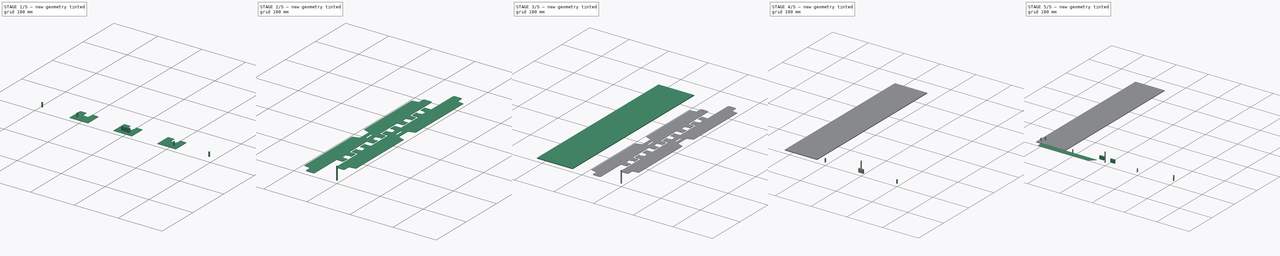
[diagram: build sequence overview — one tinted view per stage of 5, left to right]
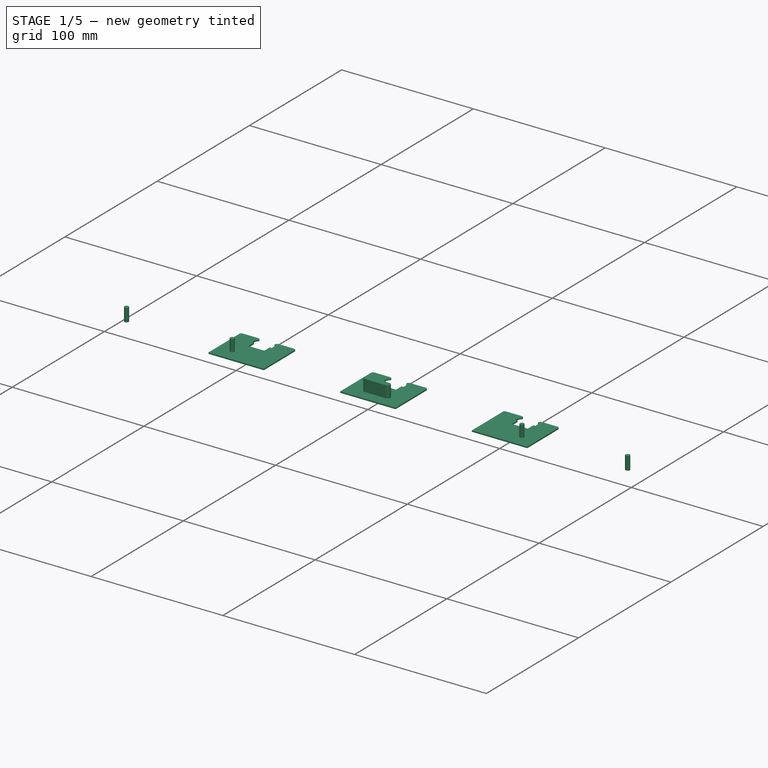
[diagram: stage 1 of 5 — iso view after this stage's code; geometry added in this stage tinted green]
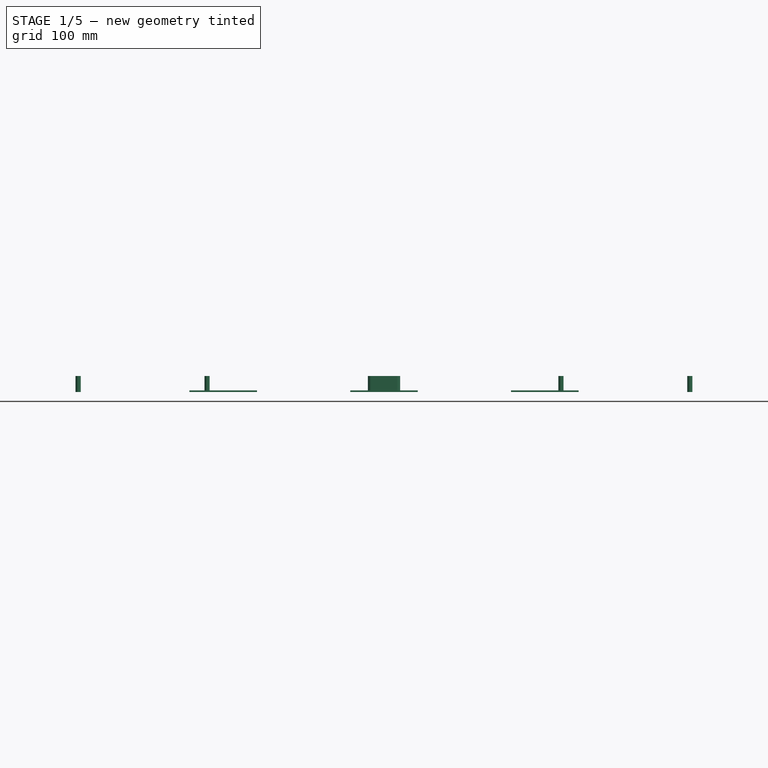
[diagram: stage 1 of 5 — front view after this stage's code; geometry added in this stage tinted green]
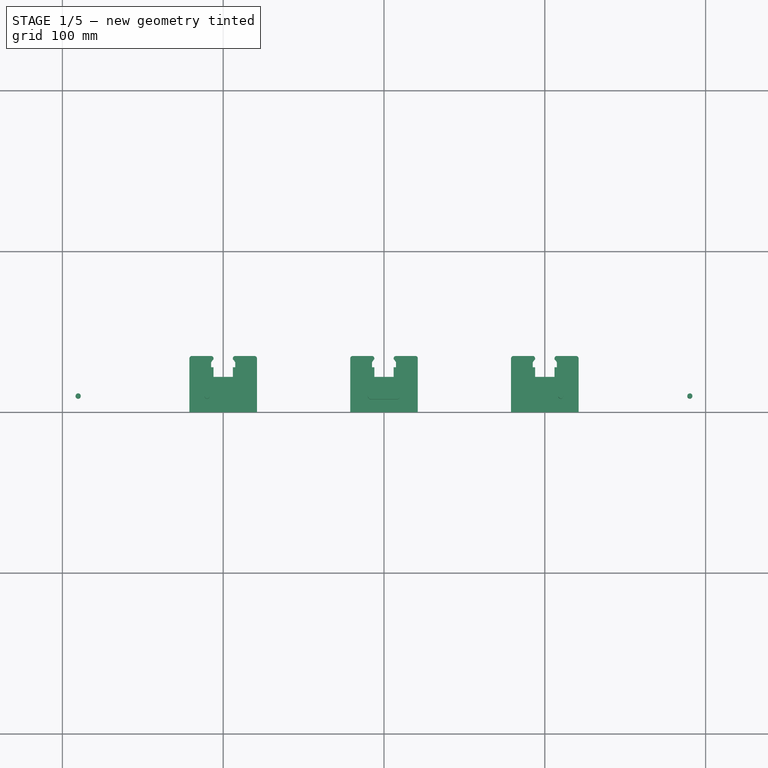
[diagram: stage 1 of 5 — top view after this stage's code; geometry added in this stage tinted green]
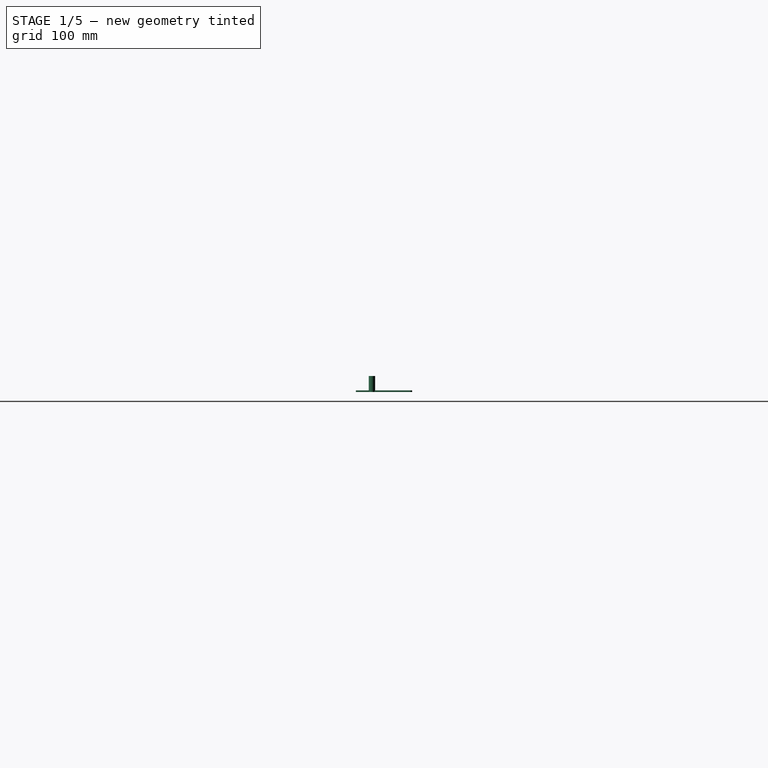
[diagram: stage 1 of 5 — right view after this stage's code; geometry added in this stage tinted green]
FCSTD DOCUMENT  (FreeCAD 1.1R38827 (Git))
Label: lamp_fix_plexiglass
License: All rights reserved
LicenseURL: http://en.wikipedia.org/wiki/All_rights_reserved
objects: Part::FeaturePython×37, Path::FeaturePython×30, App::DocumentObjectGroup×25, Sketcher::SketchObject×7, App::FeaturePython×7, Path::FeatureCompound×6, Part::Extrusion×5, Part::Mirroring×4, Part::Cylinder×3, Part::MultiFuse×2, PartDesign::Boolean×2, PartDesign::SubShapeBinder×1, PartDesign::Pad×1, Part::Compound×1, Part::Part2DObjectPython×1, PartDesign::Body×1
note: 80 computed .brp shape members not serialized (recipe doc carries the construction recipe); baked Part::Feature solids carry a one-line shape summary decoded from their .brp

FEATURE [Part::FeaturePython] LinearArray  # WARN: FeaturePython — macro-defined, semantics opaque (R4)
  Alignment = 0
  CellStart = A1
  Count = 3
  Dir = (1,0,0)
  DirIsDriven = true
  DistributionLaw = 0
  DrivenProperty = 1
  EndInclusive = true
  ExposePlacement = false
  GeneratorMode = 1
  MarkerShape = 1
  MarkerSize = 0
  NumElements = 3
  OrientMode = 1
  Placement = pos=(-100,0,0) rot=(0,0,1;0rad)
  Point = (0,0,0)
  PointIsDriven = true
  Reverse = false
  SpanEnd = 100
  SpanStart = 0
  Step = 100
  Type = lattice2LinearArray.LinearArray
  VSGVersion = 1
  Values = 0.0 | 100.0 | 200.0
  ValuesSource = 2
  isLattice = 1
  expr: .Placement.Base.x = -100 mm
FEATURE [Sketcher::SketchObject] Sketch001
  ArcFitTolerance = 0
  FullyConstrained = false
  MakeInternals = false
  sketch-geometry (11):
    g0: LineSegment StartX=0 StartY=22 StartZ=0 EndX=6 EndY=22 EndZ=0
    g1: LineSegment StartX=6 StartY=22 StartZ=0 EndX=6 EndY=27.9792 EndZ=0
    g2: LineSegment StartX=6 StartY=27.9792 StartZ=0 EndX=7.5 EndY=27.9792 EndZ=0
    g3: LineSegment StartX=7.5 StartY=27.9792 StartZ=0 EndX=7.5 EndY=30.9792 EndZ=0
    g4: ArcOfCircle CenterX=-3.08565e-06 CenterY=26.9792 CenterZ=0 NormalX=0 NormalY=0 NormalZ=1 AngleXU=0 Radius=8.5 StartAngle=0.489957 EndAngle=0.787128
    g5: ArcOfCircle CenterX=7.5 CenterY=33.5 CenterZ=0 NormalX=0 NormalY=0 NormalZ=1 AngleXU=0 Radius=1.5 StartAngle=1.5708 EndAngle=3.14159
    g6: ArcOfCircle CenterX=19.5 CenterY=33.5 CenterZ=0 NormalX=0 NormalY=0 NormalZ=1 AngleXU=0 Radius=1.5 StartAngle=-9e-16 EndAngle=1.5708
    g7: LineSegment StartX=21 StartY=33.5 StartZ=0 EndX=21 EndY=0 EndZ=0
    g8: LineSegment StartX=7.5 StartY=35 StartZ=0 EndX=19.5 EndY=35 EndZ=0
    g9: LineSegment StartX=6 StartY=33 StartZ=0 EndX=6 EndY=33.5 EndZ=0
    g10: LineSegment StartX=0 StartY=0 StartZ=0 EndX=23.1732 EndY=0 EndZ=0
  constraints (31):
    c: PointOnObject(g0,g-2)
    c: Horizontal(g0)
    c: Coincident(g0,g1)
    c: Vertical(g1)
    c: Coincident(g1,g2)
    c: Horizontal(g2)
    c: Coincident(g2,g3)
    c: Vertical(g3)
    c: Coincident(g4,g3)
    c: PointOnObject(g7,g-1)
    c: Vertical(g7)
    c: Coincident(g9,g4)
    c: Vertical(g9)
    c: Horizontal(g8)
    c: Tangent(g7,g6) = 1.5708
    c: Tangent(g8,g6) = 1.5708
    c: Tangent(g8,g5) = 1.5708
    c: Tangent(g9,g5) = 1.5708
    c: DistanceX(g0) = 6
    c: DistanceY(g0) = 22
    c: DistanceX(g2,g2) = 1.5
    c: DistanceY(g3,g3) = 3
    c: Radius(g4) = 8.5
    c: DistanceY(g9,g9) = 0.5
    c: Equal(g5,g6)
    c: Radius(g5) = 1.5
    c: Vertical(g1,g4)
    c: Coincident(g10,g-1)
    c: DistanceY(g0,g5) = 13
    c: DistanceY(g1,g1) = 5.9792
    c: DistanceX(g5,g6) = 15
FEATURE [Part::Mirroring] Part__Mirroring  label="Sketch001 (Mirror #1)"
  Base = (0,0,0)
  Normal = (1,0,0)
  Source = -> Sketch001
FEATURE [Part::FeaturePython] Connect  # WARN: FeaturePython — macro-defined, semantics opaque (R4)
  Objects = -> [Sketch001,Part__Mirroring]
  Tolerance = 0
FEATURE [Part::Extrusion] Extrude
  Base = -> Connect
  Dir = (0,0,1)
  DirMode = 2
  FaceMakerClass = Part::FaceMakerBullseye
  FaceMakerMode = 3
  LengthFwd = 1
  LengthRev = 0
  Solid = true
  Symmetric = false
FEATURE [Part::FeaturePython] Populate  label="Populate LinearArray with Extrude"  # WARN: FeaturePython — macro-defined, semantics opaque (R4)
  Copying = 0
  ExposePlacement = false
  MarkerShape = 1
  MarkerSize = 0
  NumElements = 0
  Object = -> Extrude
  OutputCompounding = 1
  PlacementsTo = -> LinearArray
  Referencing = 0
  Type = lattice2PopulateCopies.LatticePopulateCopies
  isLattice = 0
FEATURE [Part::MultiFuse] Fusion
  Shapes = -> [Populate]
FEATURE [Part::Part2DObjectPython] Rectangle  # Draft 2D object (typed FeaturePython)
  Area = 0
  ChamferSize = 0
  Columns = 1
  FilletRadius = 0
  Height = 2050
  Length = 1250
  MakeFace = false
  Placement = pos=(-1250,0,0) rot=(0,0,1;0rad)
  Rows = 1
  expr: .Placement.Base.x = -Length
FEATURE [Part::Cylinder] Cylinder
  Angle = 360
  AttacherType = Attacher::AttachEngine3D
  FirstAngle = 0
  Height = 10
  Radius = 1.6
  SecondAngle = 0
FEATURE [Part::FeaturePython] Placment003  # WARN: FeaturePython — macro-defined, semantics opaque (R4)
  AttacherType = Attacher::AttachEngine3D
  ExposePlacement = true
  MarkerShape = 1
  MarkerSize = 50
  NumElements = 1
  Placement = pos=(0,10,0) rot=(0,0,1;0rad)
  Type = lattice2AttachablePlacement.AttachablePlacement
  isLattice = 1
FEATURE [Part::FeaturePython] Placment007  # WARN: FeaturePython — macro-defined, semantics opaque (R4)
  AttacherType = Attacher::AttachEngine3D
  ExposePlacement = true
  MarkerShape = 1
  MarkerSize = 20
  NumElements = 1
  Placement = pos=(190.2,10,0) rot=(0,0,1;0rad)
  Type = lattice2AttachablePlacement.AttachablePlacement
  isLattice = 1
FEATURE [Part::FeaturePython] Placment008  # WARN: FeaturePython — macro-defined, semantics opaque (R4)
  AttacherType = Attacher::AttachEngine3D
  ExposePlacement = true
  MarkerShape = 1
  MarkerSize = 20
  NumElements = 1
  Placement = pos=(110,10,0) rot=(0,0,1;0rad)
  Type = lattice2AttachablePlacement.AttachablePlacement
  isLattice = 1
FEATURE [Part::FeaturePython] Join003  # WARN: FeaturePython — macro-defined, semantics opaque (R4)
  ExposePlacement = false
  Interleave = false
  Links = -> [Placment007,Placment008]
  MarkerShape = 1
  MarkerSize = 0
  NumElements = 2
  Type = lattice2JoinArrays.JoinArrays
  isLattice = 1
FEATURE [Part::FeaturePython] Mirror002  label="Mirror001 of Join002"  # WARN: FeaturePython — macro-defined, semantics opaque (R4)
  ExposePlacement = false
  FlipX = true
  FlipY = false
  FlipZ = false
  MarkerShape = 1
  MarkerSize = 0
  NumElements = 2
  Object = -> Join003
  ObjectTraversal = 0
  Type = lattice2Mirror.LatticeMirror
  isLattice = 1
FEATURE [Part::FeaturePython] Join004  # WARN: FeaturePython — macro-defined, semantics opaque (R4)
  ExposePlacement = false
  Interleave = false
  Links = -> [Join003,Mirror002]
  MarkerShape = 1
  MarkerSize = 0
  NumElements = 4
  Type = lattice2JoinArrays.JoinArrays
  isLattice = 1
FEATURE [Part::FeaturePython] Populate005  label="Populate Join002 with Cylinder001"  # WARN: FeaturePython — macro-defined, semantics opaque (R4)
  Copying = 0
  ExposePlacement = false
  MarkerShape = 1
  MarkerSize = 0
  NumElements = 0
  Object = -> Cylinder
  OutputCompounding = 1
  PlacementsTo = -> Join004
  Referencing = 0
  Type = lattice2PopulateCopies.LatticePopulateCopies
  isLattice = 0
FEATURE [Sketcher::SketchObject] Sketch006
  ArcFitTolerance = 0
  FullyConstrained = true
  MakeInternals = false
  sketch-geometry (4):
    g0: ArcOfCircle CenterX=-8 CenterY=0 CenterZ=0 NormalX=0 NormalY=0 NormalZ=1 AngleXU=0 Radius=2 StartAngle=1.5708 EndAngle=4.71239
    g1: ArcOfCircle CenterX=8 CenterY=0 CenterZ=0 NormalX=0 NormalY=0 NormalZ=1 AngleXU=0 Radius=2 StartAngle=4.71239 EndAngle=7.85398
    g2: LineSegment StartX=-8 StartY=2 StartZ=0 EndX=8 EndY=2 EndZ=0
    g3: LineSegment StartX=-8 StartY=-2 StartZ=0 EndX=8 EndY=-2 EndZ=0
  constraints (9):
    c: Tangent(g0,g2) = 1.5708
    c: Tangent(g0,g3) = -1.5708
    c: Tangent(g1,g2) = 1.5708
    c: Tangent(g1,g3) = -1.5708
    c: Equal(g0,g1)
    c: Symmetric(g0,g1,g-2)
    c: Diameter(g1) = 4
    c: DistanceX(g0,g1) = 16
    c: PointOnObject(g1,g-1)
FEATURE [Part::Extrusion] Extrude005
  Base = -> Sketch006
  Dir = (0,0,1)
  DirMode = 2
  FaceMakerClass = Part::FaceMakerBullseye
  FaceMakerMode = 3
  LengthFwd = 10
  LengthRev = 0
  Solid = true
  Symmetric = false
FEATURE [Part::FeaturePython] Populate004  label="Populate Placment003 with Extrude"  # WARN: FeaturePython — macro-defined, semantics opaque (R4)
  Copying = 0
  ExposePlacement = false
  MarkerShape = 1
  MarkerSize = 0
  NumElements = 0
  Object = -> Extrude005
  OutputCompounding = 2
  PlacementsTo = -> Placment003
  Referencing = 0
  Type = lattice2PopulateCopies.LatticePopulateCopies
  isLattice = 0
FEATURE [Part::MultiFuse] Fusion003
  Shapes = -> [Populate005,Populate004]
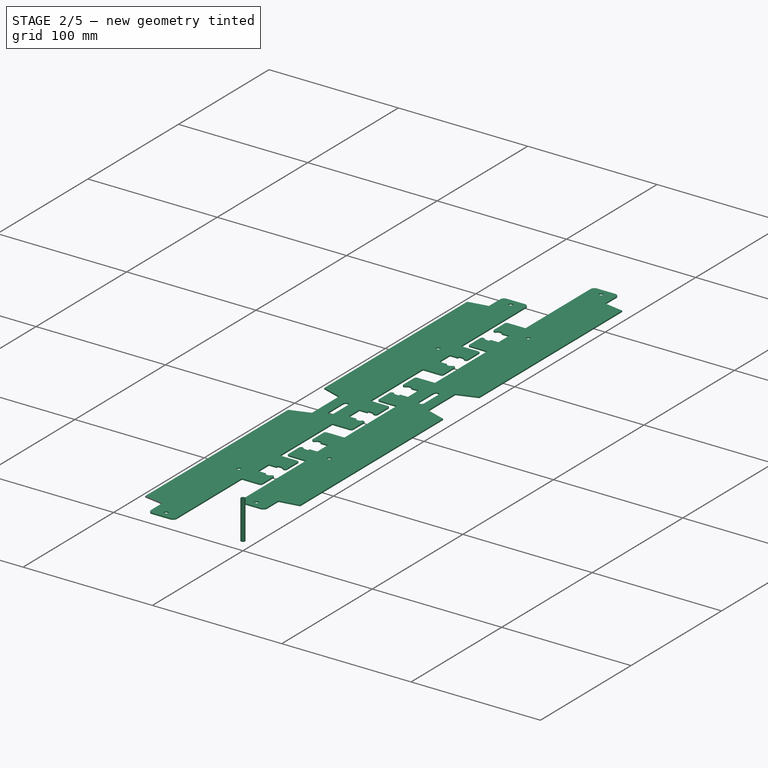
[diagram: stage 2 of 5 — iso view after this stage's code; geometry added in this stage tinted green]
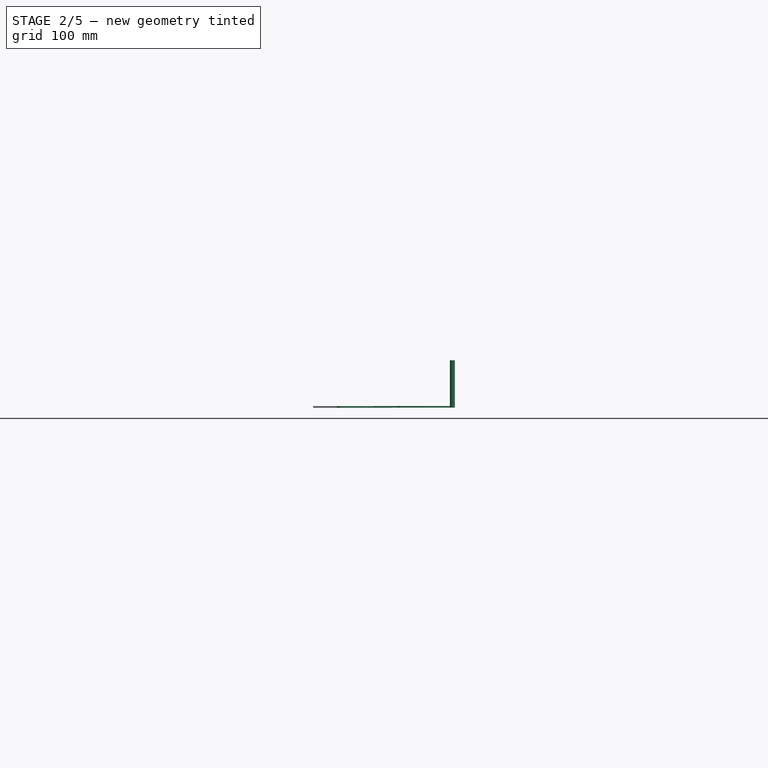
[diagram: stage 2 of 5 — front view after this stage's code; geometry added in this stage tinted green]
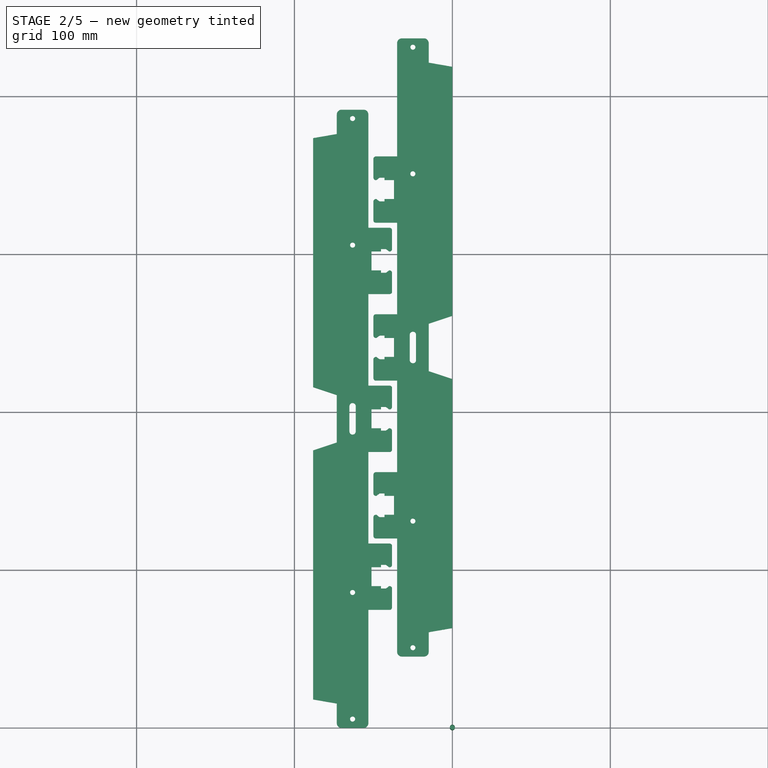
[diagram: stage 2 of 5 — top view after this stage's code; geometry added in this stage tinted green]
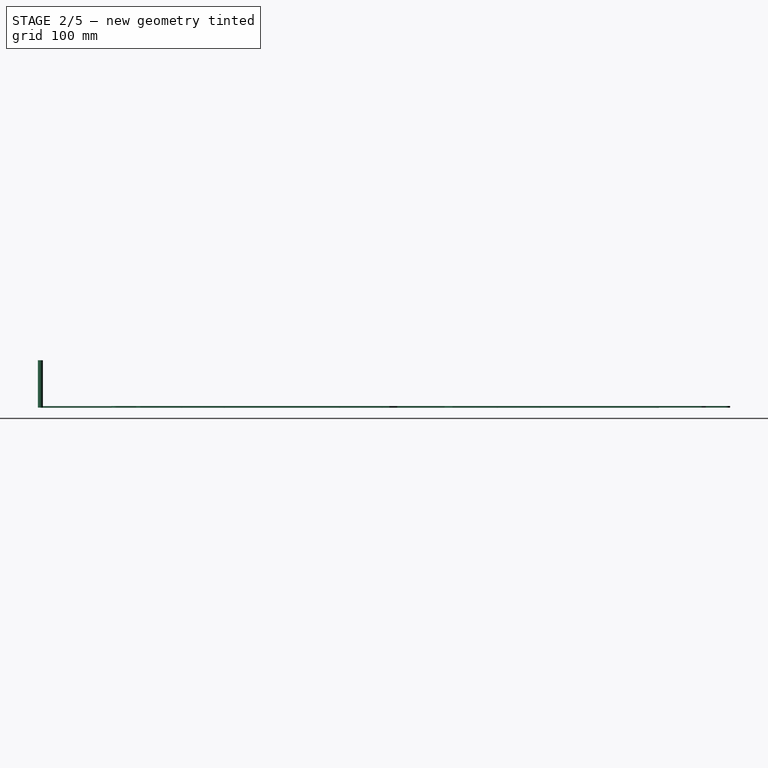
[diagram: stage 2 of 5 — right view after this stage's code; geometry added in this stage tinted green]
FEATURE [App::FeaturePython] SetupSheet  # Path/CAM operation (typed FeaturePython)
  ClearanceHeightExpression = OpStockZMax+SetupSheet.ClearanceHeightOffset
  ClearanceHeightOffset = 5
  CoolantMode = 0
  CoolantModes = None | Flood | Mist
  FinalDepthExpression = OpFinalDepth
  HorizRapid = 0
  ProfileDirection = 1
  ProfileprocessCircles = true
  ProfileprocessHoles = true
  ProfileprocessPerimeter = true
  SafeHeightExpression = OpStockZMax+SetupSheet.SafeHeightOffset
  SafeHeightOffset = 3
  StartDepthExpression = OpStartDepth
  StepDownExpression = OpToolDiameter
  VertRapid = 0
FEATURE [Part::FeaturePython] ToolBit  label="3.175mm Endmill"  # Path/CAM toolbit (typed FeaturePython)
  BitPropertyNames = Chipload | CuttingEdgeHeight | Diameter | Flutes | Length | Material | ShankDiameter | SpindleDirection
  BitShape = <path>
  Chipload = 0
  CuttingEdgeHeight = 30
  Diameter = 3.175
  Flutes = 0
  Length = 10
  Material = 0
  ShankDiameter = 3
  ShapeName = endmill
  SpindleDirection = 0
FEATURE [Path::FeaturePython] __175mm_Endmill  label="3.175mm Endmill001"  # Path/CAM operation (typed FeaturePython)
  HorizFeed = 51.6667
  HorizRapid = 0
  SpindleDir = 0
  SpindleSpeed = 18000
  Tool = -> ToolBit
  ToolNumber = 1
  VertFeed = 35
  VertRapid = 0
  expr: HorizRapid = SetupSheet.HorizRapid
  expr: VertRapid = SetupSheet.VertRapid
FEATURE [App::DocumentObjectGroup] Tools
  Group = -> [__175mm_Endmill]
FEATURE [Sketcher::SketchObject] Sketch004
  ArcFitTolerance = 0
  ExternalGeometry = -> [Sketch002]
  FullyConstrained = true
  MakeInternals = false
  sketch-geometry (4):
    g0: LineSegment StartX=25 StartY=0 StartZ=0 EndX=40 EndY=-15 EndZ=0
    g1: LineSegment StartX=40 StartY=-15 StartZ=0 EndX=196.5 EndY=-15 EndZ=0
    g2: LineSegment StartX=196.5 StartY=-15 StartZ=0 EndX=198.5 EndY=0 EndZ=0
    g3: LineSegment StartX=198.5 StartY=0 StartZ=0 EndX=25 EndY=0 EndZ=0
  constraints (12):
    c: PointOnObject(g0,g-1)
    c: Coincident(g0,g1)
    c: Horizontal(g1)
    c: Coincident(g1,g2)
    c: PointOnObject(g2,g-1)
    c: Coincident(g2,g3)
    c: Coincident(g3,g0)
    c: Angle(g0,g3) = 0.785398
    c: DistanceX(g0) = 25
    c: DistanceY(g2,g2) = 15
    c: DistanceX(g2,g-3) = 13
    c: DistanceX(g1,g2) = 2
FEATURE [PartDesign::SubShapeBinder] Binder
  BindCopyOnChange = 0
  BindMode = 0
  ClaimChildren = true
  Context = -> Body001 [Binder.]
  Fuse = false
  MakeFace = true
  OffsetFill = false
  OffsetIntersection = false
  OffsetJoinType = 0
  OffsetOpenResult = false
  PartialLoad = false
  Relative = true
  Support = -> [Connect002]
  _Version = 2
FEATURE [PartDesign::Pad] Pad001
  Direction = (0,0,1)
  Length = 1
  Length2 = 10
  Profile = -> Binder
  Suppressed = false
  Type = 0
FEATURE [PartDesign::Boolean] Boolean001
  BaseFeature = -> Pad001
  Group = -> [Fusion]
  Refine = true
  Suppressed = false
  Type = 0
  UsePlacement = true
FEATURE [PartDesign::Boolean] Boolean
  BaseFeature = -> Boolean001
  Group = -> [Fusion003]
  Suppressed = false
  Type = 1
  UsePlacement = true
FEATURE [PartDesign::Body] Body001
  AllowCompound = false
  Group = -> [Pad001,Boolean001,Boolean,Binder]
  Origin = -> Origin001
  Tip = -> Boolean
FEATURE [Part::FeaturePython] Clone  label="Model-Cut"  # Draft clone (typed FeaturePython)
  AttacherType = Attacher::AttachEngine3D
  Fuse = false
  Objects = -> [Body001]
  PathResource = Model
  Placement = pos=(-15,241,0) rot=(0,0,1;1.5708rad)
  Scale = (1,1,1)
FEATURE [Part::FeaturePython] Clone001  label="Model-Body001"  # Draft clone (typed FeaturePython)
  AttacherType = Attacher::AttachEngine3D
  Fuse = false
  Objects = -> [Body001]
  PathResource = Model
  Placement = pos=(-73.2,195.8,-0.1) rot=(0,0,-1;1.5708rad)
  Scale = (1,1,1)
FEATURE [Part::FeaturePython] ToolBit006  label="3.175mm Endmill013"  # Path/CAM toolbit (typed FeaturePython)
  BitPropertyNames = Chipload | CuttingEdgeHeight | Diameter | Flutes | Length | Material | ShankDiameter | SpindleDirection
  BitShape = <path>
  Chipload = 0
  CuttingEdgeHeight = 30
  Diameter = 3.175
  Flutes = 0
  Length = 10
  Material = 0
  ShankDiameter = 3
  ShapeName = endmill
  SpindleDirection = 0
FEATURE [Path::FeaturePython] __175mm_Endmill004  label="3.175mm Endmill008"  # Path/CAM operation (typed FeaturePython)
  HorizFeed = 51.6667
  HorizRapid = 0
  SpindleDir = 0
  SpindleSpeed = 18000
  Tool = -> ToolBit006
  ToolNumber = 1
  VertFeed = 35
  VertRapid = 0
  expr: HorizRapid = SetupSheet006.HorizRapid
  expr: VertRapid = SetupSheet006.VertRapid
FEATURE [Path::FeaturePython] Custom005  # Path/CAM operation (typed FeaturePython)
  Active = true
  CoolantMode = 0
  OpStockZMax = 0
  OpStockZMin = 0
  OpToolDiameter = 3.175
  Source = 0
  StartDepth = 1
  ToolController = -> __175mm_Endmill004
FEATURE [App::DocumentObjectGroup] Tools006
  Group = -> [__175mm_Endmill004]
FEATURE [Path::FeaturePython] Array003  # Path/CAM operation (typed FeaturePython)
  Active = true
  Angle = 0
  Base = -> [Profile002]
  Centre = (0,0,0)
  Copies = 0
  CopiesX = 13
  CopiesY = 1
  JitterMagnitude = (0,0,0)
  JitterPercent = 0
  JitterSeed = 0
  Offset = (-91.4,394.8,0)
  SwapDirection = true
  ToolController = -> __175mm_Endmill
  Type = 1
  expr: CopiesX = <<Array005>>.CopiesX
  expr: CopiesY = <<Array005>>.CopiesY
  expr: Offset = <<Array005>>.Offset
FEATURE [Path::FeatureCompound] Compound005
  Group = -> [Profile002,Array003]
  UsePlacements = false
FEATURE [App::DocumentObjectGroup] Operations004
  Group = -> [Custom004,Compound005]
FEATURE [Path::FeaturePython] Job005  label="2-2-1-holes"  # Path/CAM operation (typed FeaturePython)
  CycleTime = 00:00:00
  Fixtures = G54
  GeometryTolerance = 0.01
  JobType = 0
  LastPostProcessDate = 2024-09-20 13:23:46.449092
  LastPostProcessOutput = <path>
  Model = -> Model004
  Operations = -> Operations004
  OrderOutputBy = 2
  PostProcessor = 13
  PostProcessorOutputFile = <path>/%j.tap
  SetupSheet = -> SetupSheet004
  SplitOutput = false
  Stock = -> Stock005
  Tools = -> Tools005
FEATURE [Path::FeaturePython] Array005  # Path/CAM operation (typed FeaturePython)
  Active = true
  Angle = 0
  Base = -> [Profile]
  Centre = (0,0,0)
  Copies = 0
  CopiesX = 13
  CopiesY = 1
  JitterMagnitude = (0,0,0)
  JitterPercent = 0
  JitterSeed = 0
  Offset = (-91.4,394.8,0)
  SwapDirection = true
  ToolController = -> __175mm_Endmill
  Type = 1
FEATURE [Path::FeatureCompound] Compound006
  Group = -> [Profile,Array005]
  UsePlacements = false
FEATURE [App::DocumentObjectGroup] Operations006
  Group = -> [Custom003,Compound006]
FEATURE [Path::FeaturePython] Job004  label="1-2-1-fix"  # Path/CAM operation (typed FeaturePython)
  CycleTime = 00:00:00
  Fixtures = G54
  GeometryTolerance = 0.01
  JobType = 0
  LastPostProcessDate = 2024-09-20 13:23:35.994917
  LastPostProcessOutput = <path>
  Model = -> Model005
  Operations = -> Operations006
  OrderOutputBy = 2
  PostProcessor = 13
  PostProcessorOutputFile = <path>/%j.tap
  SetupSheet = -> SetupSheet005
  SplitOutput = false
  Stock = -> Stock004
  Tools = -> Tools004
FEATURE [Sketcher::SketchObject] Sketch007
  ArcFitTolerance = 0
  FullyConstrained = true
  MakeInternals = false
  sketch-geometry (11):
    g0: LineSegment StartX=0 StartY=20 StartZ=0 EndX=192.8 EndY=20 EndZ=0
    g1: LineSegment StartX=195.8 StartY=17 StartZ=0 EndX=195.8 EndY=3 EndZ=0
    g2: LineSegment StartX=192.8 StartY=5.06e-14 StartZ=0 EndX=180.4 EndY=0 EndZ=0
    g3: LineSegment StartX=180.4 StartY=0 StartZ=0 EndX=177.8 EndY=-15 EndZ=0
    g4: LineSegment StartX=177.8 StartY=-15 StartZ=0 EndX=20 EndY=-15 EndZ=0
    g5: LineSegment StartX=20 StartY=-15 StartZ=0 EndX=15 EndY=0 EndZ=0
    g6: LineSegment StartX=15 StartY=0 StartZ=0 EndX=0 EndY=0 EndZ=0
    g7: ArcOfCircle CenterX=192.8 CenterY=17 CenterZ=0 NormalX=0 NormalY=0 NormalZ=1 AngleXU=0 Radius=3 StartAngle=-9e-16 EndAngle=1.5708
    g8: GeomPoint [constr] X=195.8 Y=20 Z=0
    g9: ArcOfCircle CenterX=192.8 CenterY=3 CenterZ=0 NormalX=0 NormalY=0 NormalZ=1 AngleXU=0 Radius=3 StartAngle=4.71239 EndAngle=6.28319
    g10: GeomPoint [constr] X=195.8 Y=0 Z=0
  constraints (29):
    c: PointOnObject(g0,g-2)
    c: Horizontal(g0)
    c: PointOnObject(g10,g-1)
    c: Vertical(g1)
    c: PointOnObject(g2,g-1)
    c: Coincident(g2,g3)
    c: Coincident(g3,g4)
    c: Horizontal(g4)
    c: Coincident(g4,g5)
    c: PointOnObject(g5,g-1)
    c: Coincident(g5,g6)
    c: Coincident(g6,g-1)
    c: DistanceX(g8) = 195.8
    c: DistanceY(g8) = 20
    c: DistanceY(g4) = -15
    c: DistanceX(g5) = 15
    c: DistanceX(g3,g3) = 2.6
    c: DistanceX(g5,g5) = 5
    c: PointOnObject(g8,g0)
    c: PointOnObject(g8,g1)
    c: Tangent(g0,g7) = 1.5708
    c: Tangent(g1,g7) = 1.5708
    c: PointOnObject(g10,g1)
    c: PointOnObject(g10,g2)
    c: Tangent(g1,g9) = 1.5708
    c: Tangent(g2,g9) = 1.5708
    c: DistanceX(g2) = 180.4
    c: Equal(g7,g9)
    c: Radius(g7) = 3
FEATURE [Part::Mirroring] Part__Mirroring001  label="Sketch002 (Mirror #2)"
  Base = (0,0,0)
  Normal = (1,0,0)
  Source = -> Sketch007
FEATURE [Part::FeaturePython] Connect001  # WARN: FeaturePython — macro-defined, semantics opaque (R4)
  Objects = -> [Sketch002,Part__Mirroring001]
  Tolerance = 0
FEATURE [Part::FeaturePython] Connect002  # WARN: FeaturePython — macro-defined, semantics opaque (R4)
  Objects = -> [Part__Mirroring001,Sketch007]
  Tolerance = 0
FEATURE [Path::FeaturePython] Profile004  # Path/CAM operation (typed FeaturePython)
  Active = true
  AreaParams:
    Tolerance = 1e-07
    FitArcs = True
    Simplify = False
    CleanDistance = 0.0
    Accuracy = 0.01
    Unit = 1.0
    MinArcPoints = 4
    MaxArcPoints = 100
    ClipperScale = 10000000.0
    Fill = 0
    Coplanar = 0
    Reorient = True
    Outline = False
    Explode = False
    OpenMode = 0
    Deflection = 0.01
    SubjectFill = 0
    ClipFill = 0
    Offset = 1.5875
    ExtraPass = 0
    Stepover = 0.0
    LastStepover = 0.0
    JoinType = 0
    EndType = 0
    MiterLimit = 2.0
    RoundPrecision = 0.0
    PocketMode = 0
    ToolRadius = 1.0
    PocketExtraOffset = 0.0
    PocketStepover = 0.0
    PocketLastStepover = 0.0
    FromCenter = False
    Angle = 45.0
    AngleShift = 0.0
    Shift = 0.0
    Thicken = False
    SectionCount = -1
    Stepdown = 1.0
    SectionOffset = 0.0
    SectionTolerance = 1e-06
    SectionMode = 2
    Project = False
  Base = -> [Clone]
  ClearanceHeight = 7.1
  CoolantMode = 0
  CycleTime = 00:00:20
  Direction = 1
  FinalDepth = 0
  HandleMultipleFeatures = 0
  JoinType = 0
  MiterLimit = 0.1
  OffsetExtra = 0
  OpFinalDepth = 0
  OpStartDepth = 2.1
  OpStockZMax = 2.1
  OpStockZMin = -0.1
  OpToolDiameter = 3.175
  PathParams = {'orientation': 0, 'feedrate': 51.666666666666664, 'feedrate_v': 35.0, 'verbose': True, 'resume_height': 5.1, 'retraction': 7.1, 'return_end': True, 'preamble': False, 'start': Vector (-34.8, 44.4, 0.0)}
  SafeHeight = 5.1
  Side = 0
  SplitArcs = false
  StartDepth = 2.1
  StartPoint = (-34.8,44.4,0)
  StepDown = 3.175
  ToolController = -> __175mm_Endmill
  UseComp = true
  UseStartPoint = true
  processCircles = false
  processHoles = false
  processPerimeter = true
  expr: ClearanceHeight = OpStockZMax + SetupSheet.ClearanceHeightOffset
  expr: FinalDepth = OpFinalDepth
  expr: SafeHeight = OpStockZMax + SetupSheet.SafeHeightOffset
  expr: Side = 0
  expr: StartDepth = OpStartDepth
  expr: StepDown = OpToolDiameter
FEATURE [Path::FeaturePython] Profile005  # Path/CAM operation (typed FeaturePython)
  Active = true
  AreaParams:
    Tolerance = 1e-07
    FitArcs = True
    Simplify = False
    CleanDistance = 0.0
    Accuracy = 0.01
    Unit = 1.0
    MinArcPoints = 4
    MaxArcPoints = 100
    ClipperScale = 10000000.0
    Fill = 0
    Coplanar = 0
    Reorient = True
    Outline = False
    Explode = False
    OpenMode = 0
    Deflection = 0.01
    SubjectFill = 0
    ClipFill = 0
    Offset = 1.5875
    ExtraPass = 0
    Stepover = 0.0
    LastStepover = 0.0
    JoinType = 0
    EndType = 0
    MiterLimit = 2.0
    RoundPrecision = 0.0
    PocketMode = 0
    ToolRadius = 1.0
    PocketExtraOffset = 0.0
    PocketStepover = 0.0
    PocketLastStepover = 0.0
    FromCenter = False
    Angle = 45.0
    AngleShift = 0.0
    Shift = 0.0
    Thicken = False
    SectionCount = -1
    Stepdown = 1.0
    SectionOffset = 0.0
    SectionTolerance = 1e-06
    SectionMode = 2
    Project = False
  Base = -> [Clone001]
  ClearanceHeight = 7.1
  CoolantMode = 0
  CycleTime = 00:00:20
  Direction = 1
  FinalDepth = -0.1
  HandleMultipleFeatures = 0
  JoinType = 0
  MiterLimit = 0.1
  OffsetExtra = 0
  OpFinalDepth = -0.1
  OpStartDepth = 2.1
  OpStockZMax = 2.1
  OpStockZMin = -0.1
  OpToolDiameter = 3.175
  PathParams = {'orientation': 0, 'feedrate': 51.666666666666664, 'feedrate_v': 35.0, 'verbose': True, 'resume_height': 5.1, 'retraction': 7.1, 'return_end': True, 'preamble': False, 'start': Vector (-53.2, 0.0, 0.0)}
  SafeHeight = 5.1
  Side = 0
  SplitArcs = false
  StartDepth = 2.1
  StartPoint = (-53.2,0,0)
  StepDown = 3.175
  ToolController = -> __175mm_Endmill
  UseComp = true
  UseStartPoint = true
  processCircles = false
  processHoles = false
  processPerimeter = true
  expr: ClearanceHeight = OpStockZMax + SetupSheet.ClearanceHeightOffset
  expr: FinalDepth = OpFinalDepth
  expr: SafeHeight = OpStockZMax + SetupSheet.SafeHeightOffset
  expr: Side = 0
  expr: StartDepth = OpStartDepth
  expr: StepDown = OpToolDiameter
FEATURE [Path::FeaturePython] Array002  # Path/CAM operation (typed FeaturePython)
  Active = true
  Angle = 0
  Base = -> [Profile004,Profile005]
  Centre = (0,0,0)
  Copies = 0
  CopiesX = 13
  CopiesY = 2
  JitterMagnitude = (0,0,0)
  JitterPercent = 0
  JitterSeed = 0
  Offset = (-91.4,394.8,0)
  SwapDirection = false
  ToolController = -> __175mm_Endmill
  Type = 1
  expr: CopiesX = <<Array>>.CopiesX
  expr: CopiesY = <<Array>>.CopiesY
  expr: Offset = <<Array>>.Offset
FEATURE [Path::FeatureCompound] Compound003
  Group = -> [Profile004,Profile005,Array002]
  UsePlacements = false
FEATURE [App::DocumentObjectGroup] Operations003
  Group = -> [Custom002,Compound003]
FEATURE [Path::FeaturePython] Job003  label="3-1-1-per"  # Path/CAM operation (typed FeaturePython)
  CycleTime = 00:00:00
  Fixtures = G54
  GeometryTolerance = 0.01
  JobType = 0
  LastPostProcessDate = 2024-09-20 11:48:45.549134
  LastPostProcessOutput = <path>
  Model = -> Model003
  Operations = -> Operations003
  OrderOutputBy = 2
  PostProcessor = 13
  PostProcessorOutputFile = <path>/%j.tap
  SetupSheet = -> SetupSheet003
  SplitOutput = false
  Stock = -> Stock003
  Tools = -> Tools003
FEATURE [App::DocumentObjectGroup] Group002  label="1"
  Group = -> [Job001,Job002,Job003]
FEATURE [Path::FeaturePython] Array004  # Path/CAM operation (typed FeaturePython)
  Active = true
  Angle = 0
  Base = -> [Profile004,Profile005]
  Centre = (0,0,0)
  Copies = 0
  CopiesX = 13
  CopiesY = 1
  JitterMagnitude = (0,0,0)
  JitterPercent = 0
  JitterSeed = 0
  Offset = (-91.4,394.8,0)
  SwapDirection = false
  ToolController = -> __175mm_Endmill
  Type = 1
  expr: CopiesX = <<Array005>>.CopiesX
  expr: CopiesY = <<Array005>>.CopiesY
  expr: Offset = <<Array005>>.Offset
FEATURE [App::DocumentObjectGroup] Operations
  Group = -> [Profile,Profile002,Profile004,Profile005,Array,Array001,Array002,Array005,Array003,Array004]
FEATURE [Path::FeaturePython] Job  # Path/CAM operation (typed FeaturePython)
  CycleTime = 00:01:10
  Fixtures = G54
  GeometryTolerance = 0.01
  JobType = 0
  LastPostProcessDate = 2024-09-02 13:46:55.766170
  LastPostProcessOutput = <path>
  Model = -> Model
  Operations = -> Operations
  OrderOutputBy = 2
  PostProcessor = 13
  PostProcessorOutputFile = /tmp/%j.tap
  SetupSheet = -> SetupSheet
  SplitOutput = false
  Stock = -> Stock
  Tools = -> Tools
FEATURE [Path::FeatureCompound] Compound004
  Group = -> [Profile004,Profile005,Array004]
  UsePlacements = false
FEATURE [App::DocumentObjectGroup] Operations005
  Group = -> [Custom005,Compound004]
FEATURE [Path::FeaturePython] Job006  label="3-2-1-per"  # Path/CAM operation (typed FeaturePython)
  CycleTime = 00:00:00
  Fixtures = G54
  GeometryTolerance = 0.01
  JobType = 0
  LastPostProcessDate = 2024-09-20 13:24:05.138931
  LastPostProcessOutput = <path>
  Model = -> Model006
  Operations = -> Operations005
  OrderOutputBy = 2
  PostProcessor = 13
  PostProcessorOutputFile = <path>/%j.tap
  SetupSheet = -> SetupSheet006
  SplitOutput = false
  Stock = -> Stock006
  Tools = -> Tools006
FEATURE [App::DocumentObjectGroup] Group003  label="2"
  Group = -> [Job004,Job005,Job006]
FEATURE [App::DocumentObjectGroup] Group001  label="jobs"
  Group = -> [Job,Group002,Group003]
note: 20 file-system paths scrubbed to <path> (originals preserved in the JSON sidecar)
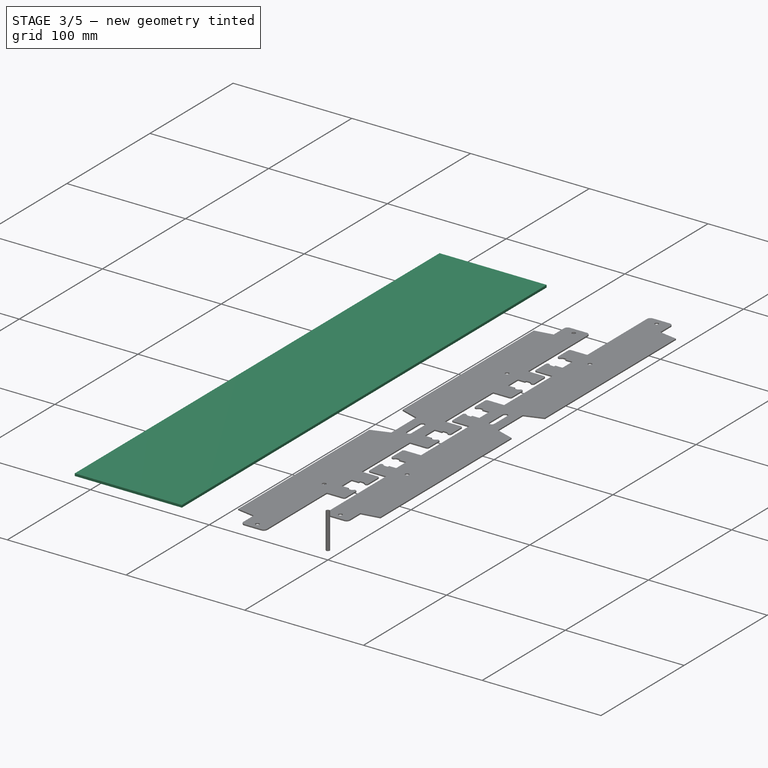
[diagram: stage 3 of 5 — iso view after this stage's code; geometry added in this stage tinted green]
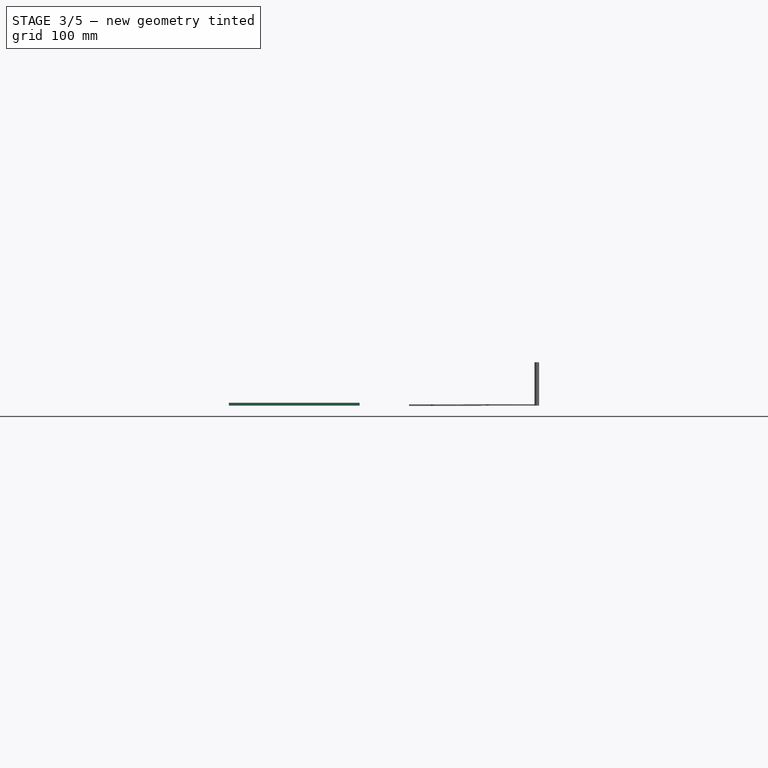
[diagram: stage 3 of 5 — front view after this stage's code; geometry added in this stage tinted green]
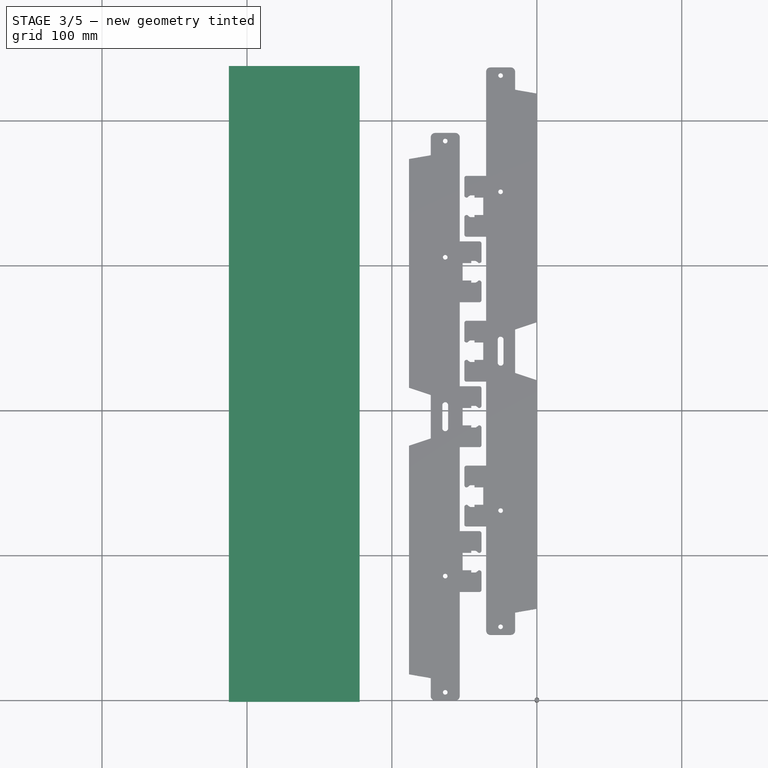
[diagram: stage 3 of 5 — top view after this stage's code; geometry added in this stage tinted green]
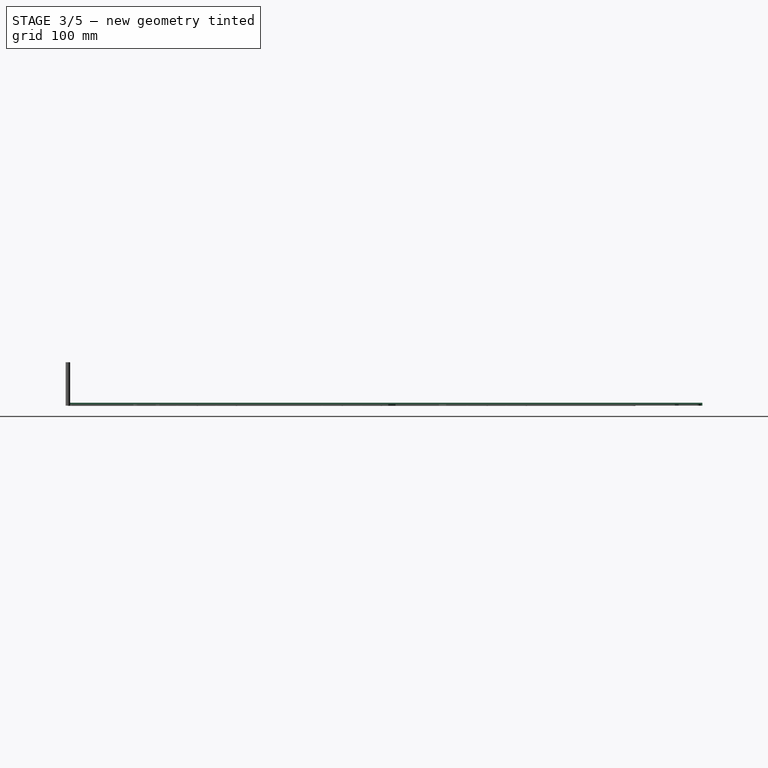
[diagram: stage 3 of 5 — right view after this stage's code; geometry added in this stage tinted green]
FEATURE [Part::FeaturePython] ToolBit002  label="3.175mm Endmill005"  # Path/CAM toolbit (typed FeaturePython)
  BitPropertyNames = Chipload | CuttingEdgeHeight | Diameter | Flutes | Length | Material | ShankDiameter | SpindleDirection
  BitShape = <path>
  Chipload = 0
  CuttingEdgeHeight = 30
  Diameter = 3.175
  Flutes = 0
  Length = 10
  Material = 0
  ShankDiameter = 3
  ShapeName = endmill
  SpindleDirection = 0
FEATURE [Path::FeaturePython] __175mm_Endmill002  label="3.175mm Endmill004"  # Path/CAM operation (typed FeaturePython)
  HorizFeed = 51.6667
  HorizRapid = 0
  SpindleDir = 0
  SpindleSpeed = 18000
  Tool = -> ToolBit002
  ToolNumber = 1
  VertFeed = 35
  VertRapid = 0
  expr: HorizRapid = SetupSheet002.HorizRapid
  expr: VertRapid = SetupSheet002.VertRapid
FEATURE [App::DocumentObjectGroup] Tools002
  Group = -> [__175mm_Endmill002]
FEATURE [Path::FeaturePython] Custom001  # Path/CAM operation (typed FeaturePython)
  Active = true
  CoolantMode = 0
  OpStockZMax = 0
  OpStockZMin = 0
  OpToolDiameter = 3.175
  Source = 0
  StartDepth = 1
  ToolController = -> __175mm_Endmill002
FEATURE [App::DocumentObjectGroup] Operations002
  Group = -> [Custom001,Compound002]
FEATURE [Path::FeaturePython] Job002  label="2-1-1-holes"  # Path/CAM operation (typed FeaturePython)
  CycleTime = 00:00:00
  Fixtures = G54
  GeometryTolerance = 0.01
  JobType = 0
  LastPostProcessDate = 2024-09-20 11:48:39.151382
  LastPostProcessOutput = <path>
  Model = -> Model002
  Operations = -> Operations002
  OrderOutputBy = 2
  PostProcessor = 13
  PostProcessorOutputFile = <path>/%j.tap
  SetupSheet = -> SetupSheet002
  SplitOutput = false
  Stock = -> Stock002
  Tools = -> Tools002
FEATURE [App::FeaturePython] SetupSheet003  # Path/CAM operation (typed FeaturePython)
  ClearanceHeightExpression = OpStockZMax+SetupSheet.ClearanceHeightOffset
  ClearanceHeightOffset = 5
  CoolantMode = 0
  CoolantModes = None | Flood | Mist
  FinalDepthExpression = OpFinalDepth
  HorizRapid = 0
  ProfileDirection = 1
  ProfileprocessCircles = true
  ProfileprocessHoles = true
  ProfileprocessPerimeter = true
  SafeHeightExpression = OpStockZMax+SetupSheet.SafeHeightOffset
  SafeHeightOffset = 3
  StartDepthExpression = OpStartDepth
  StepDownExpression = OpToolDiameter
  VertRapid = 0
FEATURE [App::DocumentObjectGroup] Model003
FEATURE [Part::FeaturePython] Stock003  # WARN: FeaturePython — macro-defined, semantics opaque (R4)
  Base = -> Model003
  ExtXneg = 1
  ExtXpos = 1
  ExtYneg = 1
  ExtYpos = 1
  ExtZneg = 0
  ExtZpos = 1
  Placement = pos=(-211.5,0,0) rot=(0,0,1;0rad)
  StockType = FromBase
FEATURE [Part::FeaturePython] ToolBit003  label="3.175mm Endmill007"  # Path/CAM toolbit (typed FeaturePython)
  BitPropertyNames = Chipload | CuttingEdgeHeight | Diameter | Flutes | Length | Material | ShankDiameter | SpindleDirection
  BitShape = <path>
  Chipload = 0
  CuttingEdgeHeight = 30
  Diameter = 3.175
  Flutes = 0
  Length = 10
  Material = 0
  ShankDiameter = 3
  ShapeName = endmill
  SpindleDirection = 0
FEATURE [Path::FeaturePython] __175mm_Endmill003  label="3.175mm Endmill006"  # Path/CAM operation (typed FeaturePython)
  HorizFeed = 51.6667
  HorizRapid = 0
  SpindleDir = 0
  SpindleSpeed = 18000
  Tool = -> ToolBit003
  ToolNumber = 1
  VertFeed = 35
  VertRapid = 0
  expr: HorizRapid = SetupSheet003.HorizRapid
  expr: VertRapid = SetupSheet003.VertRapid
FEATURE [App::DocumentObjectGroup] Tools003
  Group = -> [__175mm_Endmill003]
FEATURE [Path::FeaturePython] Custom002  # Path/CAM operation (typed FeaturePython)
  Active = true
  CoolantMode = 0
  OpStockZMax = 0
  OpStockZMin = 0
  OpToolDiameter = 3.175
  Source = 0
  StartDepth = 1
  ToolController = -> __175mm_Endmill003
FEATURE [App::FeaturePython] SetupSheet004  # Path/CAM operation (typed FeaturePython)
  ClearanceHeightExpression = OpStockZMax+SetupSheet.ClearanceHeightOffset
  ClearanceHeightOffset = 5
  CoolantMode = 0
  CoolantModes = None | Flood | Mist
  FinalDepthExpression = OpFinalDepth
  HorizRapid = 0
  ProfileDirection = 1
  ProfileprocessCircles = true
  ProfileprocessHoles = true
  ProfileprocessPerimeter = true
  SafeHeightExpression = OpStockZMax+SetupSheet.SafeHeightOffset
  SafeHeightOffset = 3
  StartDepthExpression = OpStartDepth
  StepDownExpression = OpToolDiameter
  VertRapid = 0
FEATURE [App::FeaturePython] SetupSheet005  # Path/CAM operation (typed FeaturePython)
  ClearanceHeightExpression = OpStockZMax+SetupSheet.ClearanceHeightOffset
  ClearanceHeightOffset = 5
  CoolantMode = 0
  CoolantModes = None | Flood | Mist
  FinalDepthExpression = OpFinalDepth
  HorizRapid = 0
  ProfileDirection = 1
  ProfileprocessCircles = true
  ProfileprocessHoles = true
  ProfileprocessPerimeter = true
  SafeHeightExpression = OpStockZMax+SetupSheet.SafeHeightOffset
  SafeHeightOffset = 3
  StartDepthExpression = OpStartDepth
  StepDownExpression = OpToolDiameter
  VertRapid = 0
FEATURE [App::DocumentObjectGroup] Model004
FEATURE [Part::FeaturePython] Stock005  # WARN: FeaturePython — macro-defined, semantics opaque (R4)
  Base = -> Model004
  ExtXneg = 1
  ExtXpos = 1
  ExtYneg = 1
  ExtYpos = 1
  ExtZneg = 0
  ExtZpos = 1
  Placement = pos=(-211.5,0,0) rot=(0,0,1;0rad)
  StockType = FromBase
FEATURE [Part::FeaturePython] ToolBit004  label="3.175mm Endmill011"  # Path/CAM toolbit (typed FeaturePython)
  BitPropertyNames = Chipload | CuttingEdgeHeight | Diameter | Flutes | Length | Material | ShankDiameter | SpindleDirection
  BitShape = <path>
  Chipload = 0
  CuttingEdgeHeight = 30
  Diameter = 3.175
  Flutes = 0
  Length = 10
  Material = 0
  ShankDiameter = 3
  ShapeName = endmill
  SpindleDirection = 0
FEATURE [Path::FeaturePython] __175mm_Endmill005  label="3.175mm Endmill009"  # Path/CAM operation (typed FeaturePython)
  HorizFeed = 51.6667
  HorizRapid = 0
  SpindleDir = 0
  SpindleSpeed = 18000
  Tool = -> ToolBit004
  ToolNumber = 1
  VertFeed = 35
  VertRapid = 0
  expr: HorizRapid = SetupSheet004.HorizRapid
  expr: VertRapid = SetupSheet004.VertRapid
FEATURE [App::DocumentObjectGroup] Tools005
  Group = -> [__175mm_Endmill005]
FEATURE [Path::FeaturePython] Custom004  # Path/CAM operation (typed FeaturePython)
  Active = true
  CoolantMode = 0
  OpStockZMax = 0
  OpStockZMin = 0
  OpToolDiameter = 3.175
  Source = 0
  StartDepth = 1
  ToolController = -> __175mm_Endmill005
FEATURE [App::DocumentObjectGroup] Model005
FEATURE [Part::FeaturePython] Stock004  # WARN: FeaturePython — macro-defined, semantics opaque (R4)
  Base = -> Model005
  ExtXneg = 1
  ExtXpos = 1
  ExtYneg = 1
  ExtYpos = 1
  ExtZneg = 0
  ExtZpos = 1
  Placement = pos=(-211.5,0,0) rot=(0,0,1;0rad)
  StockType = FromBase
FEATURE [Part::FeaturePython] ToolBit005  label="3.175mm Endmill012"  # Path/CAM toolbit (typed FeaturePython)
  BitPropertyNames = Chipload | CuttingEdgeHeight | Diameter | Flutes | Length | Material | ShankDiameter | SpindleDirection
  BitShape = <path>
  Chipload = 0
  CuttingEdgeHeight = 30
  Diameter = 3.175
  Flutes = 0
  Length = 10
  Material = 0
  ShankDiameter = 3
  ShapeName = endmill
  SpindleDirection = 0
FEATURE [Path::FeaturePython] __175mm_Endmill006  label="3.175mm Endmill010"  # Path/CAM operation (typed FeaturePython)
  HorizFeed = 51.6667
  HorizRapid = 0
  SpindleDir = 0
  SpindleSpeed = 18000
  Tool = -> ToolBit005
  ToolNumber = 1
  VertFeed = 35
  VertRapid = 0
  expr: HorizRapid = SetupSheet005.HorizRapid
  expr: VertRapid = SetupSheet005.VertRapid
FEATURE [App::DocumentObjectGroup] Tools004
  Group = -> [__175mm_Endmill006]
FEATURE [Path::FeaturePython] Custom003  # Path/CAM operation (typed FeaturePython)
  Active = true
  CoolantMode = 0
  OpStockZMax = 0
  OpStockZMin = 0
  OpToolDiameter = 3.175
  Source = 0
  StartDepth = 1
  ToolController = -> __175mm_Endmill006
FEATURE [App::FeaturePython] SetupSheet006  # Path/CAM operation (typed FeaturePython)
  ClearanceHeightExpression = OpStockZMax+SetupSheet.ClearanceHeightOffset
  ClearanceHeightOffset = 5
  CoolantMode = 0
  CoolantModes = None | Flood | Mist
  FinalDepthExpression = OpFinalDepth
  HorizRapid = 0
  ProfileDirection = 1
  ProfileprocessCircles = true
  ProfileprocessHoles = true
  ProfileprocessPerimeter = true
  SafeHeightExpression = OpStockZMax+SetupSheet.SafeHeightOffset
  SafeHeightOffset = 3
  StartDepthExpression = OpStartDepth
  StepDownExpression = OpToolDiameter
  VertRapid = 0
FEATURE [App::DocumentObjectGroup] Model006
FEATURE [Part::FeaturePython] Stock006  # WARN: FeaturePython — macro-defined, semantics opaque (R4)
  Base = -> Model006
  ExtXneg = 1
  ExtXpos = 1
  ExtYneg = 1
  ExtYpos = 1
  ExtZneg = 0
  ExtZpos = 1
  Placement = pos=(-211.5,0,0) rot=(0,0,1;0rad)
  StockType = FromBase
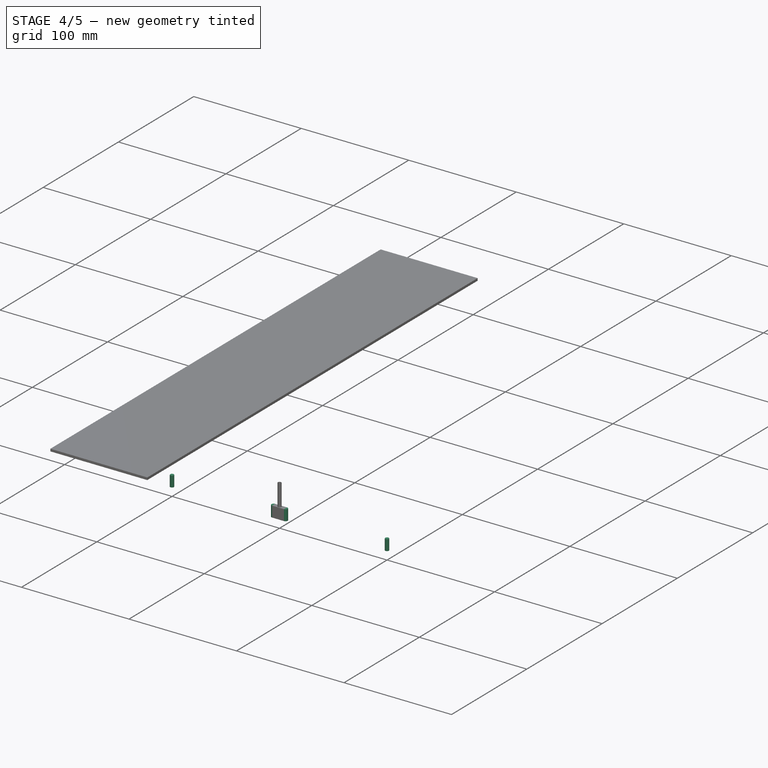
[diagram: stage 4 of 5 — iso view after this stage's code; geometry added in this stage tinted green]
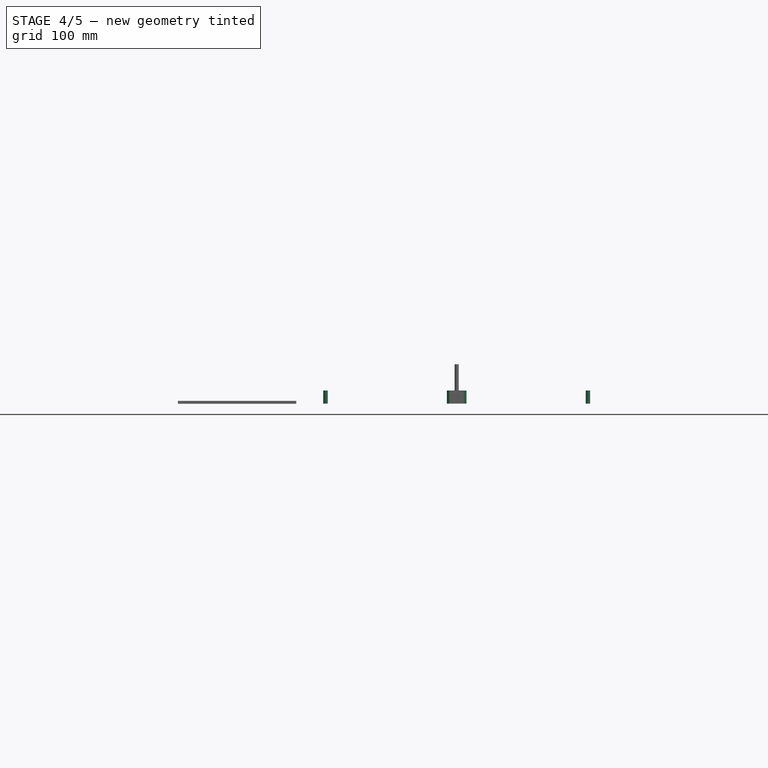
[diagram: stage 4 of 5 — front view after this stage's code; geometry added in this stage tinted green]
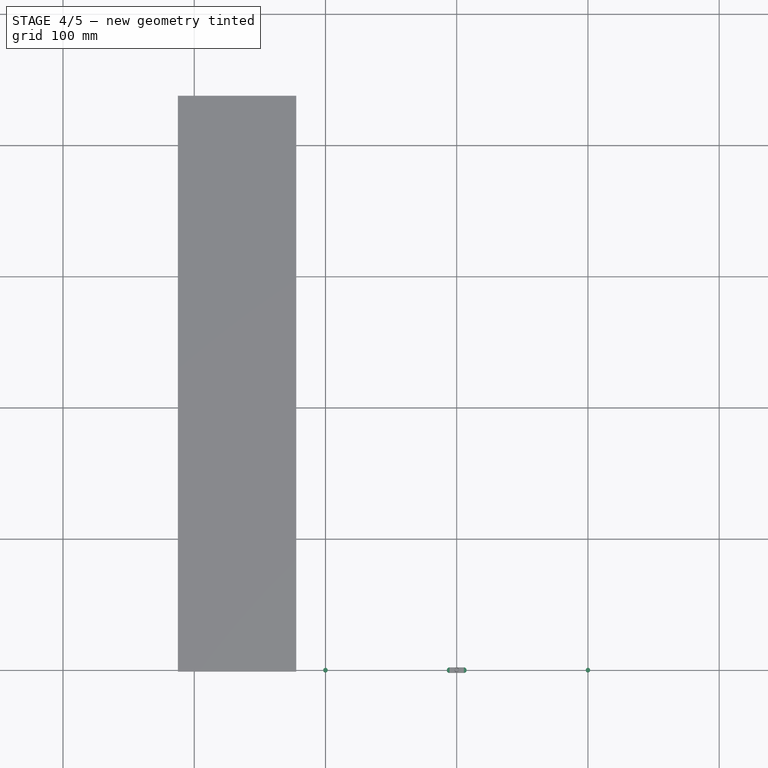
[diagram: stage 4 of 5 — top view after this stage's code; geometry added in this stage tinted green]
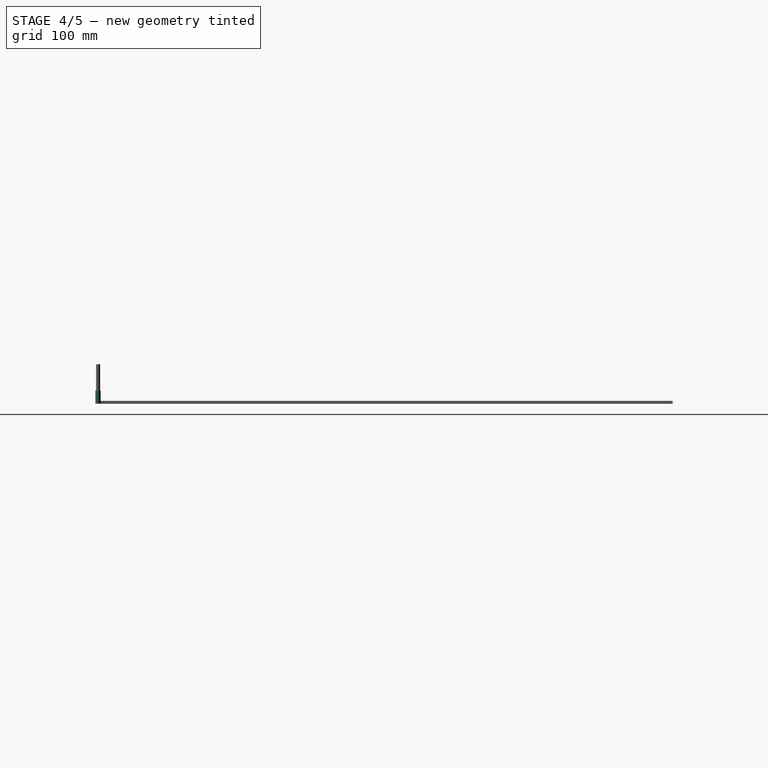
[diagram: stage 4 of 5 — right view after this stage's code; geometry added in this stage tinted green]
FEATURE [Sketcher::SketchObject] Sketch005
  ArcFitTolerance = 0
  FullyConstrained = true
  MakeInternals = false
  sketch-geometry (6):
    g0: ArcOfCircle CenterX=-5.5 CenterY=0 CenterZ=0 NormalX=0 NormalY=0 NormalZ=1 AngleXU=0 Radius=2 StartAngle=1.5708 EndAngle=4.71239
    g1: ArcOfCircle CenterX=5.5 CenterY=0 CenterZ=0 NormalX=0 NormalY=0 NormalZ=1 AngleXU=0 Radius=2 StartAngle=4.71239 EndAngle=7.85398
    g2: LineSegment StartX=-5.5 StartY=2 StartZ=0 EndX=5.5 EndY=2 EndZ=0
    g3: LineSegment StartX=-5.5 StartY=-2 StartZ=0 EndX=5.5 EndY=-2 EndZ=0
    g4: GeomPoint [constr] X=-7.5 Y=0 Z=0
    g5: GeomPoint [constr] X=7.5 Y=0 Z=0
  constraints (13):
    c: Tangent(g0,g2) = 1.5708
    c: Tangent(g0,g3) = -1.5708
    c: Tangent(g1,g2) = 1.5708
    c: Tangent(g1,g3) = -1.5708
    c: Equal(g0,g1)
    c: Horizontal(g3)
    c: Radius(g0) = 2
    c: PointOnObject(g0,g-1)
    c: PointOnObject(g4,g0)
    c: PointOnObject(g5,g1)
    c: PointOnObject(g4,g-1)
    c: Symmetric(g4,g5,g-2)
    c: DistanceX(g4,g5) = 15
FEATURE [Part::Extrusion] Extrude004
  Base = -> Sketch005
  Dir = (0,0,1)
  DirMode = 2
  FaceMakerClass = Part::FaceMakerBullseye
  FaceMakerMode = 3
  LengthFwd = 10
  LengthRev = 0
  Solid = true
  Symmetric = false
FEATURE [Part::Cylinder] Cylinder002
  Angle = 360
  AttacherType = Attacher::AttachEngine3D
  FirstAngle = 0
  Height = 10
  Radius = 1.7
  SecondAngle = 0
FEATURE [Part::FeaturePython] LinearArray002  # WARN: FeaturePython — macro-defined, semantics opaque (R4)
  Alignment = 0
  CellStart = A1
  Count = 2
  Dir = (1,0,0)
  DirIsDriven = true
  DistributionLaw = 0
  DrivenProperty = 1
  EndInclusive = true
  ExposePlacement = false
  GeneratorMode = 0
  MarkerShape = 1
  MarkerSize = 0
  NumElements = 2
  OrientMode = 1
  Placement = pos=(-100,0,0) rot=(0,0,1;0rad)
  Point = (0,0,0)
  PointIsDriven = true
  Reverse = false
  SpanEnd = 200
  SpanStart = 0
  Step = 200
  Type = lattice2LinearArray.LinearArray
  VSGVersion = 1
  Values = 0.0 | 200.0
  ValuesSource = 2
  isLattice = 1
  expr: .Placement.Base.x = -SpanEnd / 2
FEATURE [Part::FeaturePython] Populate003  label="Populate LinearArray002 with Cylinder002"  # WARN: FeaturePython — macro-defined, semantics opaque (R4)
  Copying = 0
  ExposePlacement = false
  MarkerShape = 1
  MarkerSize = 0
  NumElements = 0
  Object = -> Cylinder002
  OutputCompounding = 1
  PlacementsTo = -> LinearArray002
  Referencing = 0
  Type = lattice2PopulateCopies.LatticePopulateCopies
  isLattice = 0
FEATURE [App::DocumentObjectGroup] Model
  Group = -> [Clone,Clone001]
FEATURE [Part::FeaturePython] Stock  # WARN: FeaturePython — macro-defined, semantics opaque (R4)
  Base = -> Model
  ExtXneg = 1
  ExtXpos = 1
  ExtYneg = 1
  ExtYpos = 1
  ExtZneg = 0.1
  ExtZpos = 1
  Placement = pos=(-211.5,0,0) rot=(0,0,1;0rad)
  StockType = FromBase
FEATURE [Path::FeaturePython] Profile  label="lfp_fix"  # Path/CAM operation (typed FeaturePython)
  Active = true
  AreaParams:
    Tolerance = 1e-07
    FitArcs = True
    Simplify = False
    CleanDistance = 0.0
    Accuracy = 0.01
    Unit = 1.0
    MinArcPoints = 4
    MaxArcPoints = 100
    ClipperScale = 10000000.0
    Fill = 0
    Coplanar = 0
    Reorient = True
    Outline = False
    Explode = False
    OpenMode = 0
    Deflection = 0.01
    SubjectFill = 0
    ClipFill = 0
    Offset = -1.5875
    ExtraPass = 0
    Stepover = 0.0
    LastStepover = 0.0
    JoinType = 0
    EndType = 0
    MiterLimit = 2.0
    RoundPrecision = 0.0
    PocketMode = 0
    ToolRadius = 1.0
    PocketExtraOffset = 0.0
    PocketStepover = 0.0
    PocketLastStepover = 0.0
    FromCenter = False
    Angle = 45.0
    AngleShift = 0.0
    Shift = 0.0
    Thicken = False
    SectionCount = -1
    Stepdown = 1.0
    SectionOffset = 0.0
    SectionTolerance = 1e-06
    SectionMode = 2
    Project = False
  Base = -> [Clone,Clone001]
  ClearanceHeight = 15
  CoolantMode = 0
  CycleTime = 00:00:22
  Direction = 1
  FinalDepth = -0.1
  HandleMultipleFeatures = 0
  JoinType = 0
  MiterLimit = 0.1
  OffsetExtra = 0
  OpFinalDepth = 0
  OpStartDepth = 2.1
  OpStockZMax = 2.1
  OpStockZMin = -0.1
  OpToolDiameter = 3.175
  PathParams = {'orientation': 0, 'feedrate': 51.666666666666664, 'feedrate_v': 35.0, 'verbose': True, 'resume_height': 5.1, 'retraction': 15.0, 'return_end': True, 'preamble': False, 'start': Vector (-63.19847250000002, 385.9965690999981, 15.0)}
  SafeHeight = 5.1
  Side = 0
  SplitArcs = false
  StartDepth = 2.1
  StartPoint = (0,0,0)
  StepDown = 3.175
  ToolController = -> __175mm_Endmill
  UseComp = true
  UseStartPoint = false
  processCircles = true
  processHoles = false
  processPerimeter = false
  expr: SafeHeight = OpStockZMax + SetupSheet.SafeHeightOffset
  expr: StartDepth = OpStartDepth
  expr: StepDown = OpToolDiameter
FEATURE [Path::FeaturePython] Array  # Path/CAM operation (typed FeaturePython)
  Active = true
  Angle = 0
  Base = -> [Profile]
  Centre = (0,0,0)
  Copies = 0
  CopiesX = 13
  CopiesY = 2
  JitterMagnitude = (0,0,0)
  JitterPercent = 0
  JitterSeed = 0
  Offset = (-91.4,394.8,0)
  SwapDirection = true
  ToolController = -> __175mm_Endmill
  Type = 1
FEATURE [App::DocumentObjectGroup] Group  label="parts"
  Group = -> [Body001]
FEATURE [Path::FeaturePython] Profile002  label="lfp_holes"  # Path/CAM operation (typed FeaturePython)
  Active = true
  AreaParams:
    Tolerance = 1e-07
    FitArcs = True
    Simplify = False
    CleanDistance = 0.0
    Accuracy = 0.01
    Unit = 1.0
    MinArcPoints = 4
    MaxArcPoints = 100
    ClipperScale = 10000000.0
    Fill = 0
    Coplanar = 0
    Reorient = True
    Outline = False
    Explode = False
    OpenMode = 0
    Deflection = 0.01
    SubjectFill = 0
    ClipFill = 0
    Offset = -1.5875
    ExtraPass = 0
    Stepover = 0.0
    LastStepover = 0.0
    JoinType = 0
    EndType = 0
    MiterLimit = 2.0
    RoundPrecision = 0.0
    PocketMode = 0
    ToolRadius = 1.0
    PocketExtraOffset = 0.0
    PocketStepover = 0.0
    PocketLastStepover = 0.0
    FromCenter = False
    Angle = 45.0
    AngleShift = 0.0
    Shift = 0.0
    Thicken = False
    SectionCount = -1
    Stepdown = 1.0
    SectionOffset = 0.0
    SectionTolerance = 1e-06
    SectionMode = 2
    Project = False
  Base = -> [Clone,Clone001]
  ClearanceHeight = 15
  CoolantMode = 0
  CycleTime = 00:00:08
  Direction = 1
  FinalDepth = -0.1
  HandleMultipleFeatures = 0
  JoinType = 0
  MiterLimit = 0.1
  OffsetExtra = 0
  OpFinalDepth = 0
  OpStartDepth = 2.1
  OpStockZMax = 2.1
  OpStockZMin = -0.1
  OpToolDiameter = 3.175
  PathParams = {'orientation': 0, 'feedrate': 51.666666666666664, 'feedrate_v': 35.0, 'verbose': True, 'resume_height': 5.1, 'retraction': 15.0, 'return_end': True, 'preamble': False, 'start': Vector (-62.90222143148013, 204.08407897729967, 15.0)}
  SafeHeight = 5.1
  Side = 0
  SplitArcs = false
  StartDepth = 2.1
  StartPoint = (0,0,0)
  StepDown = 3.175
  ToolController = -> __175mm_Endmill
  UseComp = true
  UseStartPoint = false
  processCircles = false
  processHoles = true
  processPerimeter = false
  expr: Base = <<lfp_fix>>.Base
  expr: SafeHeight = OpStockZMax + SetupSheet.SafeHeightOffset
  expr: StartDepth = OpStartDepth
  expr: StepDown = OpToolDiameter
FEATURE [App::FeaturePython] SetupSheet001  # Path/CAM operation (typed FeaturePython)
  ClearanceHeightExpression = OpStockZMax+SetupSheet.ClearanceHeightOffset
  ClearanceHeightOffset = 5
  CoolantMode = 0
  CoolantModes = None | Flood | Mist
  FinalDepthExpression = OpFinalDepth
  HorizRapid = 0
  ProfileDirection = 1
  ProfileprocessCircles = true
  ProfileprocessHoles = true
  ProfileprocessPerimeter = true
  SafeHeightExpression = OpStockZMax+SetupSheet.SafeHeightOffset
  SafeHeightOffset = 3
  StartDepthExpression = OpStartDepth
  StepDownExpression = OpToolDiameter
  VertRapid = 0
FEATURE [App::DocumentObjectGroup] Model001
FEATURE [Part::FeaturePython] Stock001  # WARN: FeaturePython — macro-defined, semantics opaque (R4)
  Base = -> Model001
  ExtXneg = 1
  ExtXpos = 1
  ExtYneg = 1
  ExtYpos = 1
  ExtZneg = 0
  ExtZpos = 1
  Placement = pos=(-211.5,0,0) rot=(0,0,1;0rad)
  StockType = FromBase
FEATURE [Part::FeaturePython] ToolBit001  label="3.175mm Endmill003"  # Path/CAM toolbit (typed FeaturePython)
  BitPropertyNames = Chipload | CuttingEdgeHeight | Diameter | Flutes | Length | Material | ShankDiameter | SpindleDirection
  BitShape = <path>
  Chipload = 0
  CuttingEdgeHeight = 30
  Diameter = 3.175
  Flutes = 0
  Length = 10
  Material = 0
  ShankDiameter = 3
  ShapeName = endmill
  SpindleDirection = 0
FEATURE [Path::FeaturePython] __175mm_Endmill001  label="3.175mm Endmill002"  # Path/CAM operation (typed FeaturePython)
  HorizFeed = 51.6667
  HorizRapid = 0
  SpindleDir = 0
  SpindleSpeed = 18000
  Tool = -> ToolBit001
  ToolNumber = 1
  VertFeed = 35
  VertRapid = 0
  expr: HorizRapid = SetupSheet001.HorizRapid
  expr: VertRapid = SetupSheet001.VertRapid
FEATURE [App::DocumentObjectGroup] Tools001
  Group = -> [__175mm_Endmill001]
FEATURE [Path::FeatureCompound] Compound001
  Group = -> [Profile,Array]
  UsePlacements = false
FEATURE [Path::FeaturePython] Custom  # Path/CAM operation (typed FeaturePython)
  Active = true
  CoolantMode = 0
  OpStockZMax = 0
  OpStockZMin = 0
  OpToolDiameter = 3.175
  Source = 0
  StartDepth = 1
  ToolController = -> __175mm_Endmill001
FEATURE [App::DocumentObjectGroup] Operations001
  Group = -> [Custom,Compound001]
FEATURE [Path::FeaturePython] Job001  label="1-1-1-fix"  # Path/CAM operation (typed FeaturePython)
  CycleTime = 00:00:00
  Fixtures = G54
  GeometryTolerance = 0.01
  JobType = 0
  LastPostProcessDate = 2024-09-20 11:47:57.419629
  LastPostProcessOutput = <path>
  Model = -> Model001
  Operations = -> Operations001
  OrderOutputBy = 2
  PostProcessor = 13
  PostProcessorOutputFile = <path>/%j.tap
  SetupSheet = -> SetupSheet001
  SplitOutput = false
  Stock = -> Stock001
  Tools = -> Tools001
FEATURE [Path::FeaturePython] Array001  # Path/CAM operation (typed FeaturePython)
  Active = true
  Angle = 0
  Base = -> [Profile002]
  Centre = (0,0,0)
  Copies = 0
  CopiesX = 13
  CopiesY = 2
  JitterMagnitude = (0,0,0)
  JitterPercent = 0
  JitterSeed = 0
  Offset = (-91.4,394.8,0)
  SwapDirection = true
  ToolController = -> __175mm_Endmill
  Type = 1
  expr: CopiesX = <<Array>>.CopiesX
  expr: CopiesY = <<Array>>.CopiesY
  expr: Offset = <<Array>>.Offset
FEATURE [Path::FeatureCompound] Compound002
  Group = -> [Profile002,Array001]
  UsePlacements = false
FEATURE [App::FeaturePython] SetupSheet002  # Path/CAM operation (typed FeaturePython)
  ClearanceHeightExpression = OpStockZMax+SetupSheet.ClearanceHeightOffset
  ClearanceHeightOffset = 5
  CoolantMode = 0
  CoolantModes = None | Flood | Mist
  FinalDepthExpression = OpFinalDepth
  HorizRapid = 0
  ProfileDirection = 1
  ProfileprocessCircles = true
  ProfileprocessHoles = true
  ProfileprocessPerimeter = true
  SafeHeightExpression = OpStockZMax+SetupSheet.SafeHeightOffset
  SafeHeightOffset = 3
  StartDepthExpression = OpStartDepth
  StepDownExpression = OpToolDiameter
  VertRapid = 0
FEATURE [App::DocumentObjectGroup] Model002
FEATURE [Part::FeaturePython] Stock002  # WARN: FeaturePython — macro-defined, semantics opaque (R4)
  Base = -> Model002
  ExtXneg = 1
  ExtXpos = 1
  ExtYneg = 1
  ExtYpos = 1
  ExtZneg = 0
  ExtZpos = 1
  Placement = pos=(-211.5,0,0) rot=(0,0,1;0rad)
  StockType = FromBase
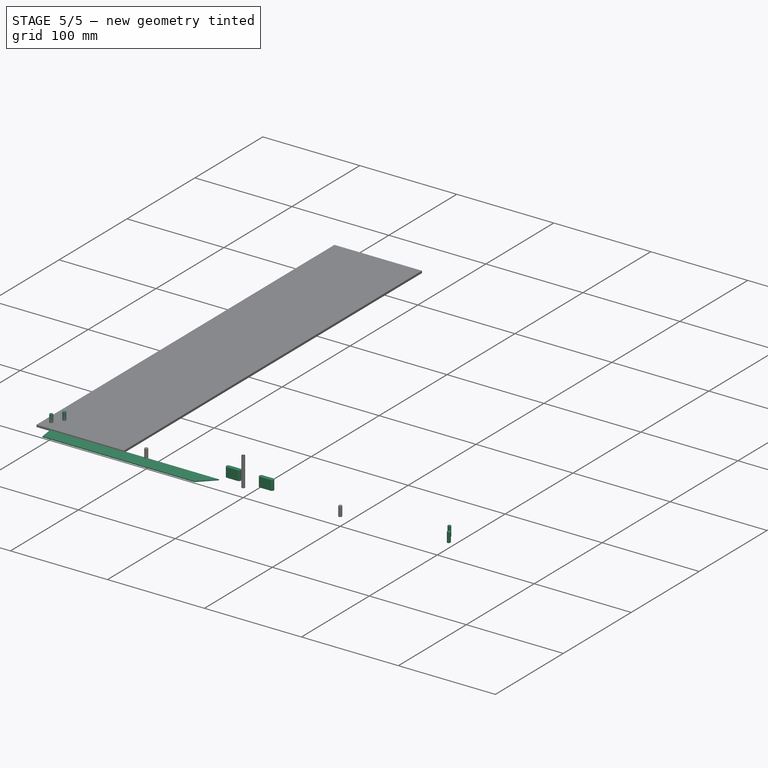
[diagram: stage 5 of 5 — iso view after this stage's code; geometry added in this stage tinted green]
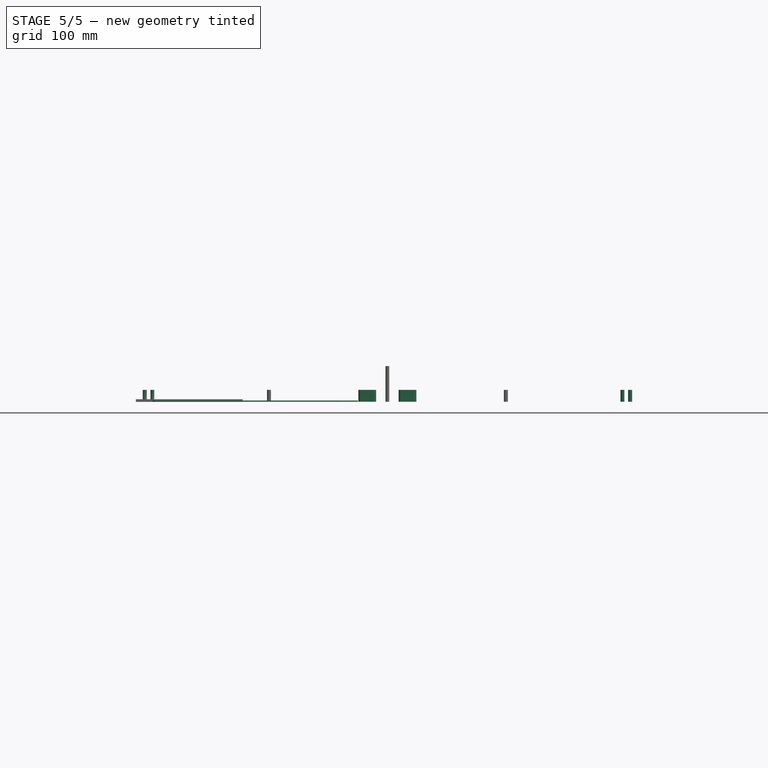
[diagram: stage 5 of 5 — front view after this stage's code; geometry added in this stage tinted green]
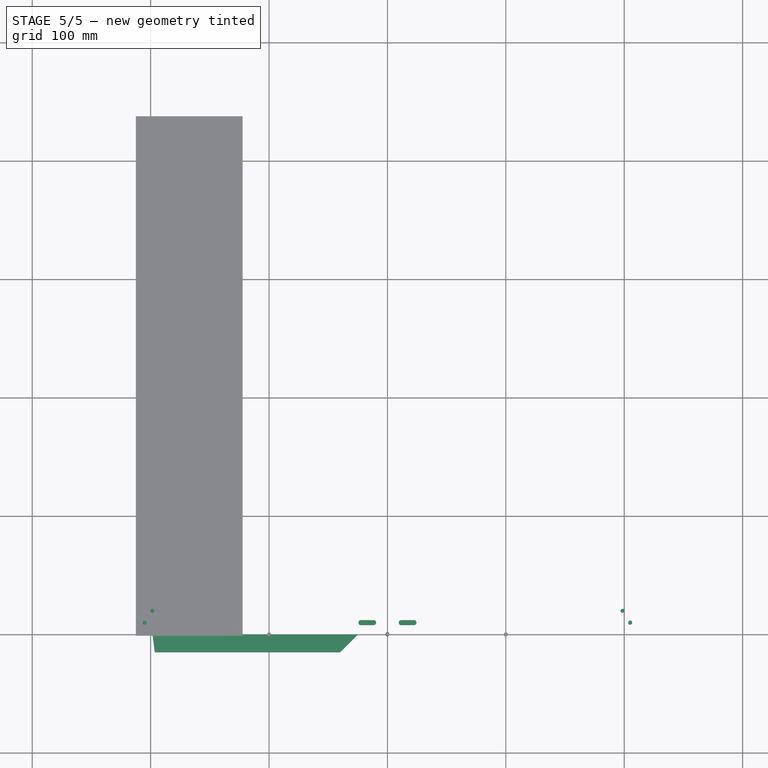
[diagram: stage 5 of 5 — top view after this stage's code; geometry added in this stage tinted green]
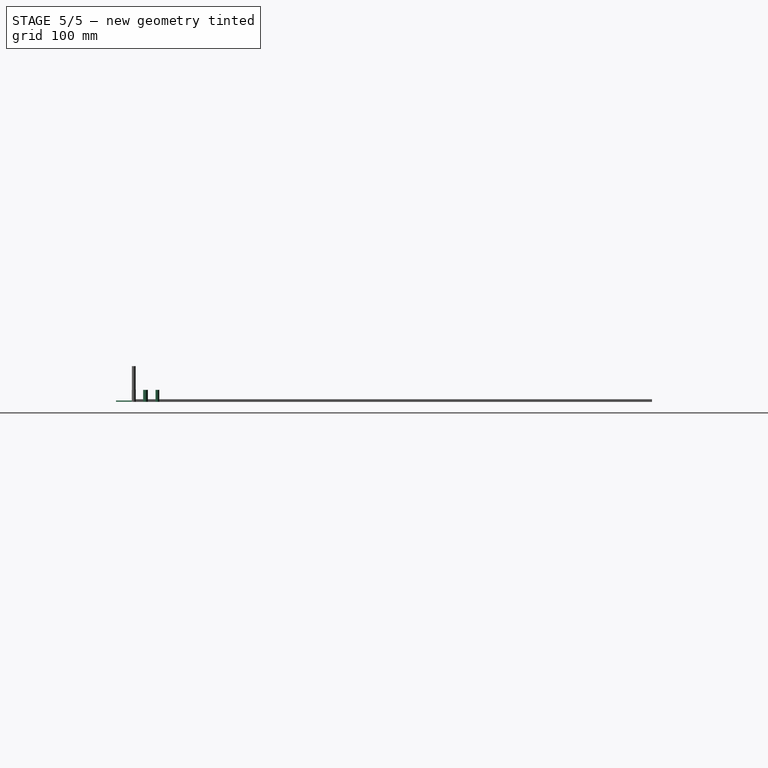
[diagram: stage 5 of 5 — right view after this stage's code; geometry added in this stage tinted green]
FEATURE [Sketcher::SketchObject] Sketch002
  ArcFitTolerance = 0
  FullyConstrained = true
  MakeInternals = false
  sketch-geometry (3):
    g0: LineSegment StartX=0 StartY=0 StartZ=0 EndX=211.5 EndY=0 EndZ=0
    g1: LineSegment StartX=211.5 StartY=0 StartZ=0 EndX=211.5 EndY=20 EndZ=0
    g2: LineSegment StartX=211.5 StartY=20 StartZ=0 EndX=0 EndY=20 EndZ=0
  constraints (9):
    c: Coincident(g-1,g0)
    c: PointOnObject(g0,g-1)
    c: Coincident(g0,g1)
    c: Vertical(g1)
    c: PointOnObject(g2,g-2)
    c: Horizontal(g2)
    c: DistanceY(g2) = 20
    c: DistanceX(g0) = 211.5
    c: Coincident(g2,g1)
FEATURE [Sketcher::SketchObject] Sketch003
  ArcFitTolerance = 0
  ExternalGeometry = -> [Sketch002]
  FullyConstrained = false
  MakeInternals = false
  sketch-geometry (6):
    g0: Circle CenterX=205 CenterY=10 CenterZ=0 NormalX=0 NormalY=0 NormalZ=1 AngleXU=0 Radius=1.7
    g1: LineSegment [constr] StartX=198.5 StartY=20 StartZ=0 EndX=198.5 EndY=0 EndZ=0
    g2: LineSegment [constr] StartX=198.5 StartY=0 StartZ=0 EndX=211.5 EndY=0 EndZ=0
    g3: LineSegment [constr] StartX=211.5 StartY=0 StartZ=0 EndX=211.5 EndY=20 EndZ=0
    g4: LineSegment [constr] StartX=211.5 StartY=20 StartZ=0 EndX=198.5 EndY=20 EndZ=0
    g5: GeomPoint [constr] X=205 Y=10 Z=0
  constraints (11):
    c: Diameter(g0) = 3.4
    c: Coincident(g1,g2)
    c: Coincident(g2,g3)
    c: Coincident(g3,g4)
    c: Coincident(g4,g1)
    c: Vertical(g1)
    c: Vertical(g3)
    c: Horizontal(g2)
    c: Horizontal(g4)
    c: Symmetric(g3,g1,g5)
    c: Coincident(g5,g0)
FEATURE [Part::Extrusion] Extrude002
  Base = -> Sketch003
  Dir = (0,0,1)
  DirMode = 2
  FaceMakerClass = Part::FaceMakerBullseye
  FaceMakerMode = 3
  LengthFwd = 10
  LengthRev = 0
  Solid = true
  Symmetric = false
FEATURE [Part::Mirroring] Part__Mirroring002  label="Extrude002 (Mirror #3)"
  Base = (0,0,0)
  Normal = (1,0,0)
  Source = -> Extrude002
FEATURE [Part::FeaturePython] LinearArray001  # WARN: FeaturePython — macro-defined, semantics opaque (R4)
  Alignment = 0
  CellStart = A1
  Count = 2
  Dir = (1,0,0)
  DirIsDriven = true
  DistributionLaw = 0
  DrivenProperty = 1
  EndInclusive = true
  ExposePlacement = false
  GeneratorMode = 0
  MarkerShape = 1
  MarkerSize = 0
  NumElements = 2
  OrientMode = 1
  Placement = pos=(-17,10,0) rot=(0,0,1;0rad)
  Point = (0,0,0)
  PointIsDriven = true
  Reverse = false
  SpanEnd = 34
  SpanStart = 0
  Step = 34
  Type = lattice2LinearArray.LinearArray
  VSGVersion = 1
  Values = 0.0 | 34.0
  ValuesSource = 2
  isLattice = 1
  expr: .Placement.Base.x = -SpanEnd / 2
FEATURE [Part::Extrusion] Extrude003
  Base = -> Sketch004
  Dir = (0,0,1)
  DirMode = 2
  FaceMakerClass = Part::FaceMakerBullseye
  FaceMakerMode = 3
  LengthFwd = 1
  LengthRev = 0
  Solid = true
  Symmetric = false
FEATURE [Part::Mirroring] Part__Mirroring003  label="Extrude003 (Mirror #4)"
  Base = (0,0,0)
  Normal = (1,0,0)
  Source = -> Extrude003
FEATURE [Part::Cylinder] Cylinder001
  Angle = 360
  AttacherType = Attacher::AttachEngine3D
  FirstAngle = 0
  Height = 10
  Radius = 1.6
  SecondAngle = 0
FEATURE [Part::FeaturePython] Placment  # WARN: FeaturePython — macro-defined, semantics opaque (R4)
  AttacherType = Attacher::AttachEngine3D
  AttachmentOffset = pos=(-13,0,0) rot=(0,0,1;0rad)
  AttachmentSupport = -> [Sketch002]
  ExposePlacement = true
  MapMode = 1
  MarkerShape = 1
  MarkerSize = 20
  NumElements = 1
  Placement = pos=(198.5,20,0) rot=(0,0,1;0rad)
  Type = lattice2AttachablePlacement.AttachablePlacement
  isLattice = 1
FEATURE [Part::FeaturePython] Mirror  label="Mirror of Placment"  # WARN: FeaturePython — macro-defined, semantics opaque (R4)
  ExposePlacement = false
  FlipX = true
  FlipY = false
  FlipZ = false
  MarkerShape = 1
  MarkerSize = 20
  NumElements = 1
  Object = -> Placment
  ObjectTraversal = 0
  Type = lattice2Mirror.LatticeMirror
  isLattice = 1
FEATURE [Part::FeaturePython] Join  # WARN: FeaturePython — macro-defined, semantics opaque (R4)
  ExposePlacement = false
  Interleave = false
  Links = -> [Placment,Mirror]
  MarkerShape = 1
  MarkerSize = 0
  NumElements = 2
  Type = lattice2JoinArrays.JoinArrays
  isLattice = 1
FEATURE [Part::FeaturePython] Populate002  label="Populate Join with Cylinder001"  # WARN: FeaturePython — macro-defined, semantics opaque (R4)
  Copying = 0
  ExposePlacement = false
  MarkerShape = 1
  MarkerSize = 0
  NumElements = 0
  Object = -> Cylinder001
  OutputCompounding = 1
  PlacementsTo = -> Join
  Referencing = 0
  Type = lattice2PopulateCopies.LatticePopulateCopies
  isLattice = 0
FEATURE [Part::FeaturePython] Populate001  label="Populate LinearArray001 with Cylinder"  # WARN: FeaturePython — macro-defined, semantics opaque (R4)
  Copying = 0
  ExposePlacement = false
  MarkerShape = 1
  MarkerSize = 0
  NumElements = 0
  Object = -> Extrude004
  OutputCompounding = 1
  PlacementsTo = -> LinearArray001
  Referencing = 0
  Type = lattice2PopulateCopies.LatticePopulateCopies
  isLattice = 0
FEATURE [Part::Compound] Compound
  Links = -> [Extrude002,Part__Mirroring002,Populate001,Populate002,Populate003]
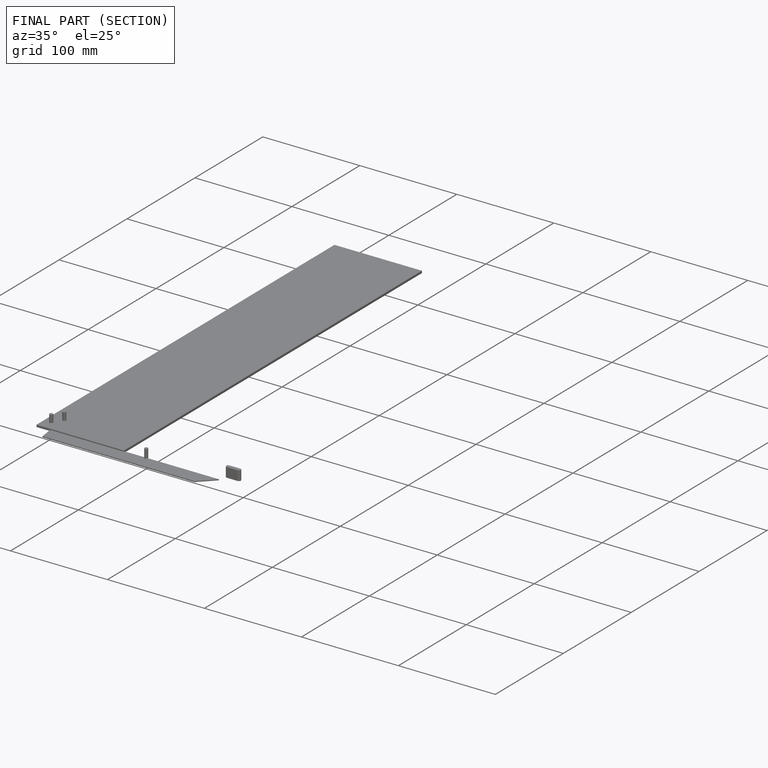
[diagram: finished part — half-section view (interior)]
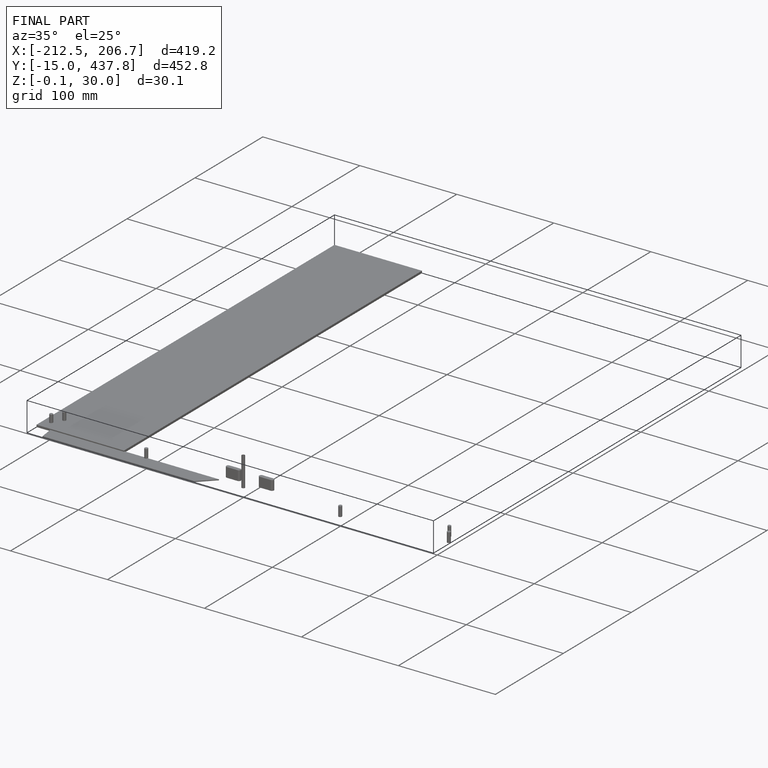
[diagram: finished part — iso view with bounding-box wireframe]
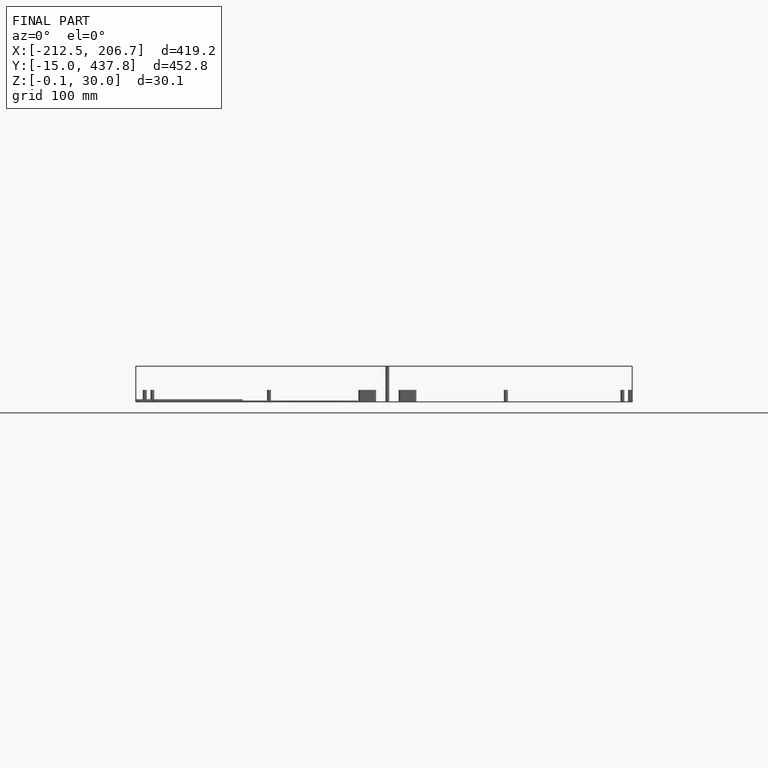
[diagram: finished part — front view with bounding-box wireframe]
